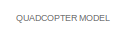
[diagram: root canvas - part 1/4, top center region]
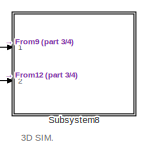
[diagram: root canvas - part 2/4, top right region]
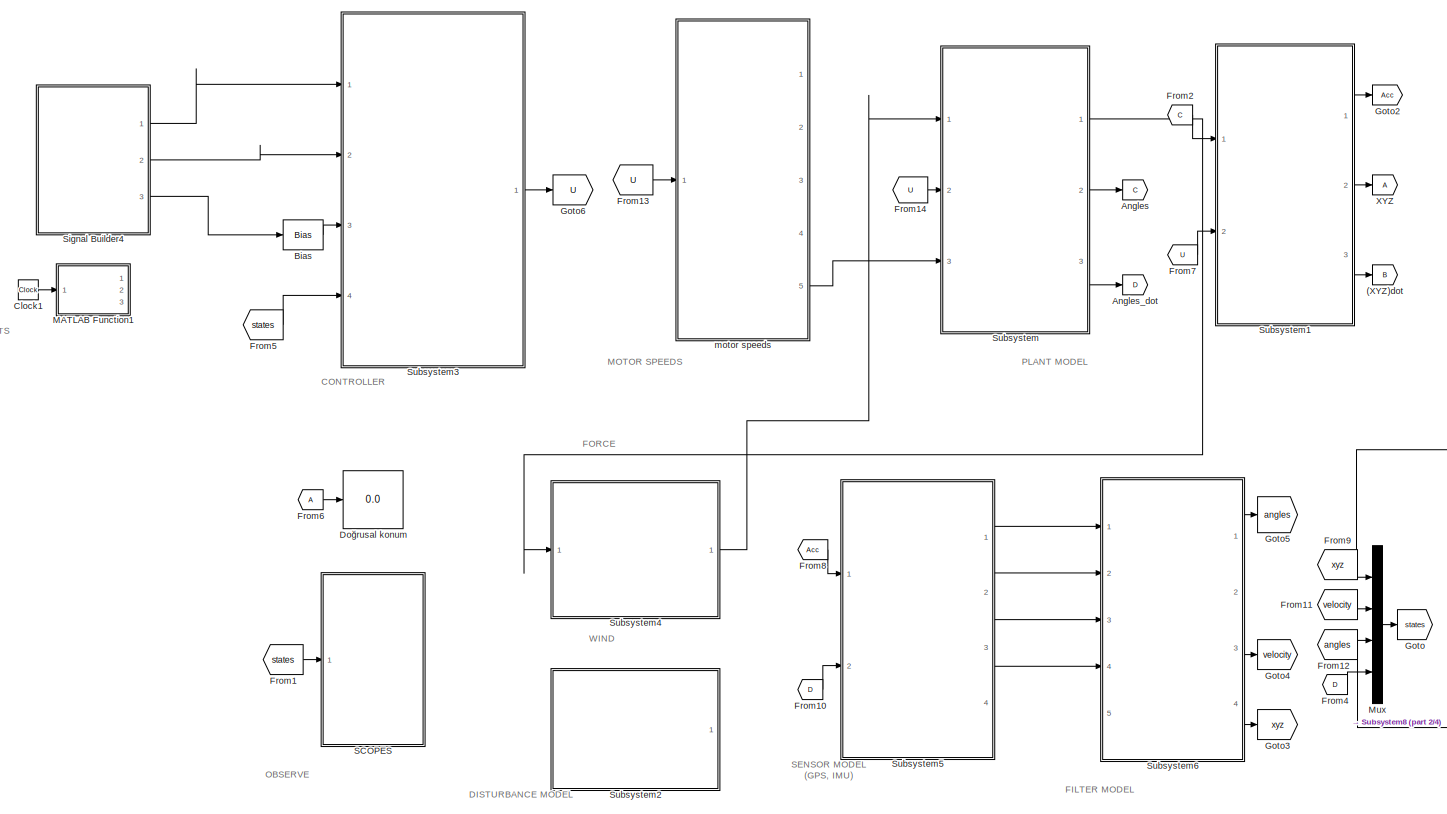
[diagram: root canvas - part 3/4, most of the canvas]
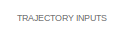
[diagram: root canvas - part 4/4, middle left region]
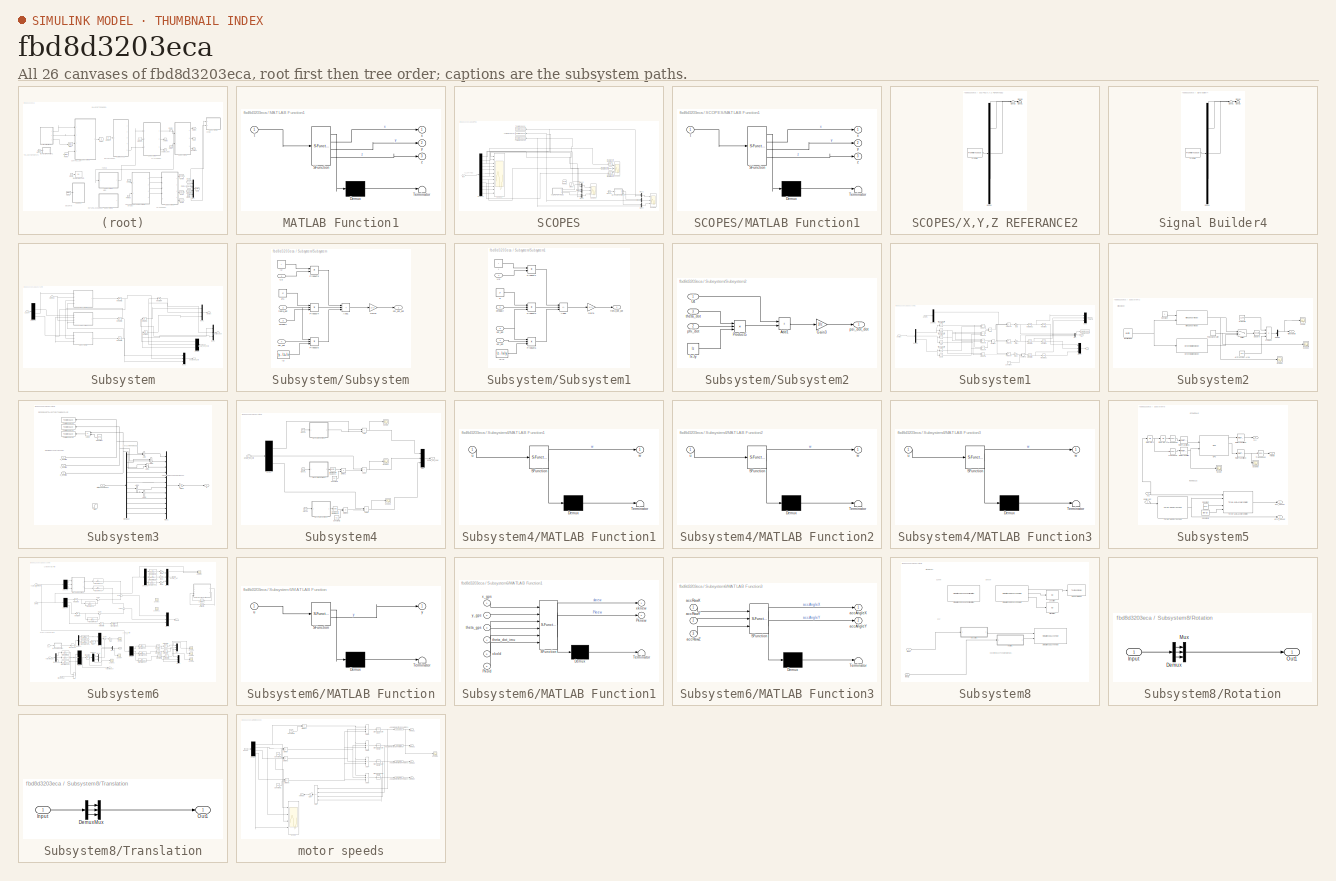
[diagram: thumbnail index - all 26 canvases of the model, root first then tree order]
MODEL slx_fbd8d3203eca
KIND model
CONFIG AbsTol = auto
CONFIG EnableMultiTasking = off
CONFIG FixedStep = 10e-3
CONFIG MaxStep = auto
CONFIG MinStep = auto
CONFIG RelTol = 1e-3
CONFIG SampleTimeConstraint = Unconstrained
CONFIG SolverName = VariableStepAuto
CONFIG StartTime = 0
CONFIG StopTime = 20
BLOCK [Goto] (XYZ)dot
  GotoTag = B
BLOCK [Goto] Angles
  GotoTag = C
BLOCK [Goto] Angles_dot
  GotoTag = D
BLOCK [Bias] Bias
  Bias = 1
  SaturateOnIntegerOverflow = off
BLOCK [Clock] Clock1
BLOCK [Display] Doğrusal konum
  Decimation = 1
  Ports = [1]
BLOCK [From] From1
  GotoTag = states
BLOCK [From] From10
  GotoTag = D
BLOCK [From] From11
  GotoTag = velocity
BLOCK [From] From12
  GotoTag = angles
BLOCK [From] From13
  GotoTag = U
BLOCK [From] From14
  GotoTag = U
BLOCK [From] From2
  GotoTag = C
BLOCK [From] From4
  GotoTag = D
BLOCK [From] From5
  GotoTag = states
BLOCK [From] From6
BLOCK [From] From7
  GotoTag = U
BLOCK [From] From8
  GotoTag = Acc
BLOCK [From] From9
  GotoTag = xyz
BLOCK [Goto] Goto
  GotoTag = states
BLOCK [Goto] Goto2
  GotoTag = Acc
BLOCK [Goto] Goto3
  GotoTag = xyz
BLOCK [Goto] Goto4
  GotoTag = velocity
BLOCK [Goto] Goto5
  GotoTag = angles
BLOCK [Goto] Goto6
  GotoTag = U
BLOCK [SubSystem] MATLAB Function1
  ErrorFcn = Stateflow.Translate.translate
  PermitHierarchicalResolution = ExplicitOnly
  Ports = [1, 3]
  RequestExecContextInheritance = off
  SFBlockType = MATLAB Function
  TreatAsAtomicUnit = on
BLOCK [Demux] MATLAB Function1/ Demux 
  Outputs = 1
  Ports = [1, 1]
BLOCK [S-Function] MATLAB Function1/ SFunction 
  EnableBusSupport = on
  FunctionName = sf_sfun
  PortCounts = [1 4]
  Ports = [1, 4]
  SFcnIsStateOwnerBlock = off
  SFunctionDeploymentMode = off
  Tag = Stateflow S-Function 8
BLOCK [Terminator] MATLAB Function1/ Terminator 
BLOCK [Inport] MATLAB Function1/t
BLOCK [Outport] MATLAB Function1/x
BLOCK [Outport] MATLAB Function1/y
  Port = 2
BLOCK [Outport] MATLAB Function1/z
  Port = 3
BLOCK [Mux] Mux
  DisplayOption = bar
  Ports = [4, 1]
BLOCK [SubSystem] SCOPES
  Ports = [1]
  RequestExecContextInheritance = off
BLOCK [Clock] SCOPES/Clock1
BLOCK [Demux] SCOPES/Demux3
  Outputs = 12
  Ports = [1, 12]
BLOCK [Inport] SCOPES/In1
BLOCK [SubSystem] SCOPES/MATLAB Function1
  ErrorFcn = Stateflow.Translate.translate
  PermitHierarchicalResolution = ExplicitOnly
  Ports = [1, 3]
  RequestExecContextInheritance = off
  SFBlockType = MATLAB Function
  TreatAsAtomicUnit = on
BLOCK [Demux] SCOPES/MATLAB Function1/ Demux 
  Outputs = 1
  Ports = [1, 1]
BLOCK [S-Function] SCOPES/MATLAB Function1/ SFunction 
  EnableBusSupport = on
  FunctionName = sf_sfun
  PortCounts = [1 4]
  Ports = [1, 4]
  SFcnIsStateOwnerBlock = off
  SFunctionDeploymentMode = off
  Tag = Stateflow S-Function 3
BLOCK [Terminator] SCOPES/MATLAB Function1/ Terminator 
BLOCK [Inport] SCOPES/MATLAB Function1/t
BLOCK [Outport] SCOPES/MATLAB Function1/x
BLOCK [Outport] SCOPES/MATLAB Function1/y
  Port = 2
BLOCK [Outport] SCOPES/MATLAB Function1/z
  Port = 3
BLOCK [Mux] SCOPES/Mux1
  DisplayOption = bar
  Inputs = 2
  Ports = [2, 1]
BLOCK [Mux] SCOPES/Mux2
  DisplayOption = bar
  Inputs = 2
  Ports = [2, 1]
BLOCK [Mux] SCOPES/Mux3
  DisplayOption = bar
  Inputs = 2
  Ports = [2, 1]
BLOCK [Mux] SCOPES/Mux4
  DisplayOption = bar
  Inputs = 2
  Ports = [2, 1]
BLOCK [Mux] SCOPES/Mux7
  DisplayOption = bar
  Inputs = 2
  Ports = [2, 1]
BLOCK [Mux] SCOPES/Mux8
  DisplayOption = bar
  Inputs = 2
  Ports = [2, 1]
BLOCK [Reference] SCOPES/Radians to Degrees1  REF=simulink_extras/Transformations/Radians
to Degrees
  Ports = [1, 1]
  SourceBlock = simulink_extras/Transformations/Radians\nto Degrees
  SourceProductBaseCode = SL
  SourceType = RadiansToDegrees
BLOCK [Reference] SCOPES/Radians to Degrees2  REF=simulink_extras/Transformations/Radians
to Degrees
  Ports = [1, 1]
  SourceBlock = simulink_extras/Transformations/Radians\nto Degrees
  SourceProductBaseCode = SL
  SourceType = RadiansToDegrees
BLOCK [Reference] SCOPES/Radians to Degrees3  REF=simulink_extras/Transformations/Radians
to Degrees
  Ports = [1, 1]
  SourceBlock = simulink_extras/Transformations/Radians\nto Degrees
  SourceProductBaseCode = SL
  SourceType = RadiansToDegrees
BLOCK [Reference] SCOPES/Ramp1  REF=simulink/Sources/Ramp
  Ports = [0, 1]
  SourceBlock = simulink/Sources/Ramp
  SourceProductBaseCode = SL
  SourceType = Ramp
BLOCK [Scope] SCOPES/Scope1
  Floating = off
  NumInputPorts = 3
  Ports = [3]
  ScopeSpecificationString = Simulink.scopes.TimeScopeBlockCfg('CurrentConfiguration', extmgr.ConfigurationSet(extmgr.Configuration('Core','General UI',true,'FigureColor',[1 1 1]),extmgr.Configuration('Core','Source UI',true),extmgr.Configuration('Sources','WiredSimulink',true,'DataLoggingVariableName','ScopeData2'),extmgr.Configuration('Visuals','Time Domain',true,'SerializedDisplays',{struct('MinYLimReal','-0.1402','MaxYLim...<+3589ch>
BLOCK [Scope] SCOPES/Scope2
  Floating = off
  NumInputPorts = 12
  Ports = [12]
  ScopeSpecificationString = Simulink.scopes.TimeScopeBlockCfg('CurrentConfiguration', extmgr.ConfigurationSet(extmgr.Configuration('Core','General UI',true),extmgr.Configuration('Core','Source UI',true),extmgr.Configuration('Sources','WiredSimulink',true,'DataLoggingVariableName','ScopeData1'),extmgr.Configuration('Visuals','Time Domain',true,'SerializedDisplays',{struct('MinYLimReal','-0.13438','MaxYLimReal','1.20943','YLab...<+10398ch>
BLOCK [Scope] SCOPES/Scope3
  Floating = off
  NumInputPorts = 3
  Ports = [3]
  ScopeSpecificationString = Simulink.scopes.TimeScopeBlockCfg('CurrentConfiguration', extmgr.ConfigurationSet(extmgr.Configuration('Core','General UI',true,'FigureColor',[1 1 1]),extmgr.Configuration('Core','Source UI',true),extmgr.Configuration('Sources','WiredSimulink',true,'DataLoggingVariableName','ScopeData1'),extmgr.Configuration('Visuals','Time Domain',true,'SerializedDisplays',{struct('MinYLimReal','-68.17096','MaxYL...<+3508ch>
BLOCK [Scope] SCOPES/Scope5
  Floating = off
  NumInputPorts = 3
  Ports = [3]
  ScopeSpecificationString = Simulink.scopes.TimeScopeBlockCfg('CurrentConfiguration', extmgr.ConfigurationSet(extmgr.Configuration('Core','General UI',true,'FigureColor',[1 1 1]),extmgr.Configuration('Core','Source UI',true),extmgr.Configuration('Sources','WiredSimulink',true,'DataLoggingVariableName','ScopeData2'),extmgr.Configuration('Visuals','Time Domain',true,'SerializedDisplays',{struct('MinYLimReal','-2.5','MaxYLimRea...<+3581ch>
BLOCK [Step] SCOPES/Step1
  SampleTime = 0
BLOCK [ToWorkspace] SCOPES/To Workspace
  FixptAsFi = on
  MaxDataPoints = inf
  Ports = [1]
  SampleTime = -1
  VariableName = X
BLOCK [ToWorkspace] SCOPES/To Workspace1
  FixptAsFi = on
  MaxDataPoints = inf
  Ports = [1]
  SampleTime = -1
  VariableName = Y
BLOCK [ToWorkspace] SCOPES/To Workspace2
  FixptAsFi = on
  MaxDataPoints = inf
  Ports = [1]
  SampleTime = -1
  VariableName = Z
BLOCK [SubSystem] SCOPES/X,Y,Z REFERANCE2
  ClipboardFcn = sigbuilder_block('clipboard');
  CloseFcn = sigbuilder_block('close');
  ContinueFcn = sigbuilder_block('continue');
  CopyFcn = sigbuilder_block('copy');
  DeleteFcn = sigbuilder_block('delete');
  LoadFcn = sigbuilder_block('load');
  MaskHideContents = on
  ModelCloseFcn = sigbuilder_block('modelClose');
  NameChangeFcn = sigbuilder_block('namechange');
  OpenFcn = sigbuilder_block('open',[392.25 186 550.5 399.75 ]);
  PauseFcn = sigbuilder_block('pause');
  Ports = [0, 3]
  PreSaveFcn = sigbuilder_block('preSave');
  RequestExecContextInheritance = off
  StartFcn = sigbuilder_block('start');
  StopFcn = sigbuilder_block('stop');
  Tag = STV Subsys
BLOCK [Demux] SCOPES/X,Y,Z REFERANCE2/Demux
  DisplayOption = none
  Outputs = 3
  Ports = [1, 3]
  Tag = STV Demux
BLOCK [FromWorkspace] SCOPES/X,Y,Z REFERANCE2/FromWs
  Tag = STV FromWs
  VariableName = tuvar
BLOCK [Outport] SCOPES/X,Y,Z REFERANCE2/Signal 1
  Port = 2
  Tag = STV Outport
BLOCK [Outport] SCOPES/X,Y,Z REFERANCE2/Signal 2
  Tag = STV Outport
BLOCK [Outport] SCOPES/X,Y,Z REFERANCE2/Signal 3
  Port = 3
  Tag = STV Outport
BLOCK [SubSystem] Signal Builder4
  ClipboardFcn = sigbuilder_block('clipboard');
  CloseFcn = sigbuilder_block('close');
  ContinueFcn = sigbuilder_block('continue');
  CopyFcn = sigbuilder_block('copy');
  DeleteFcn = sigbuilder_block('delete');
  LoadFcn = sigbuilder_block('load');
  MaskHideContents = on
  ModelCloseFcn = sigbuilder_block('modelClose');
  NameChangeFcn = sigbuilder_block('namechange');
  OpenFcn = sigbuilder_block('open',[437.6 199.2 550.4 400 ]);
  PauseFcn = sigbuilder_block('pause');
  Ports = [0, 3]
  PreSaveFcn = sigbuilder_block('preSave');
  RequestExecContextInheritance = off
  StartFcn = sigbuilder_block('start');
  StopFcn = sigbuilder_block('stop');
  Tag = STV Subsys
BLOCK [Demux] Signal Builder4/Demux
  DisplayOption = none
  Outputs = 3
  Ports = [1, 3]
  Tag = STV Demux
BLOCK [FromWorkspace] Signal Builder4/FromWs
  Tag = STV FromWs
  VariableName = tuvar
BLOCK [Outport] Signal Builder4/Signal 1
  Tag = STV Outport
BLOCK [Outport] Signal Builder4/Signal 2
  Port = 2
  Tag = STV Outport
BLOCK [Outport] Signal Builder4/Signal 3
  Port = 3
  Tag = STV Outport
BLOCK [SubSystem] Subsystem
  Ports = [3, 3]
  RequestExecContextInheritance = off
BLOCK [Demux] Subsystem/Demux
  Outputs = 3
  Ports = [1, 3]
BLOCK [Demux] Subsystem/Demux1
  Ports = [1, 4]
BLOCK [Integrator] Subsystem/Integrator1
  Ports = [1, 1]
  WrapState = on
BLOCK [Integrator] Subsystem/Integrator2
  Ports = [1, 1]
BLOCK [Integrator] Subsystem/Integrator3
  Ports = [1, 1]
BLOCK [Integrator] Subsystem/Integrator4
  Ports = [1, 1]
  WrapState = on
BLOCK [Integrator] Subsystem/Integrator5
  Ports = [1, 1]
BLOCK [Integrator] Subsystem/Integrator6
  Ports = [1, 1]
  WrapState = on
BLOCK [Mux] Subsystem/Mux1
  DisplayOption = bar
  Inputs = 3
  Ports = [3, 1]
BLOCK [Mux] Subsystem/Mux2
  DisplayOption = bar
  Inputs = 3
  Ports = [3, 1]
BLOCK [Mux] Subsystem/Mux3
  DisplayOption = bar
  Inputs = 3
  Ports = [3, 1]
BLOCK [SubSystem] Subsystem/Subsystem
  Ports = [4, 1]
  RequestExecContextInheritance = off
BLOCK [Sum] Subsystem/Subsystem/Add1
  IconShape = rectangular
  Inputs = +++
  Ports = [3, 1]
BLOCK [Gain] Subsystem/Subsystem/Gain3
  Gain = 1/Ix
BLOCK [Constant] Subsystem/Subsystem/Jr1
  Value = Jr
BLOCK [Product] Subsystem/Subsystem/Product3
  Ports = [2, 1]
BLOCK [Product] Subsystem/Subsystem/Product4
  Inputs = 3
  Ports = [3, 1]
BLOCK [Product] Subsystem/Subsystem/Product5
  Inputs = 3
  Ports = [3, 1]
BLOCK [Inport] Subsystem/Subsystem/U2
BLOCK [Constant] Subsystem/Subsystem/l2
  Value = l
BLOCK [Constant] Subsystem/Subsystem/l3
  Value = Iy - Iz+Ix
BLOCK [Inport] Subsystem/Subsystem/omega-r
  Port = 3
BLOCK [Outport] Subsystem/Subsystem/phi_dot_dot
BLOCK [Inport] Subsystem/Subsystem/psi_dot
  Port = 4
BLOCK [Inport] Subsystem/Subsystem/theta_dot
  Port = 2
BLOCK [SubSystem] Subsystem/Subsystem1
  Ports = [4, 1]
  RequestExecContextInheritance = off
BLOCK [Sum] Subsystem/Subsystem1/Add2
  IconShape = rectangular
  Inputs = +-+
  Ports = [3, 1]
BLOCK [Gain] Subsystem/Subsystem1/Gain1
  Gain = 1/Iy
BLOCK [Constant] Subsystem/Subsystem1/Iz-Ix
  Value = Iz - Ix-Iy
BLOCK [Constant] Subsystem/Subsystem1/Jr
  Value = Jr
BLOCK [Product] Subsystem/Subsystem1/Product1
  Ports = [2, 1]
BLOCK [Product] Subsystem/Subsystem1/Product2
  Inputs = 3
  Ports = [3, 1]
BLOCK [Product] Subsystem/Subsystem1/Product6
  Inputs = 3
  Ports = [3, 1]
BLOCK [Inport] Subsystem/Subsystem1/U3
BLOCK [Constant] Subsystem/Subsystem1/l
  Value = l
BLOCK [Inport] Subsystem/Subsystem1/omega-r
  Port = 2
BLOCK [Inport] Subsystem/Subsystem1/phi_dot
  Port = 3
BLOCK [Inport] Subsystem/Subsystem1/psi_dot
  Port = 4
BLOCK [Outport] Subsystem/Subsystem1/theta_dot_dot
BLOCK [SubSystem] Subsystem/Subsystem2
  Ports = [3, 1]
  RequestExecContextInheritance = off
BLOCK [Sum] Subsystem/Subsystem2/Add1
  IconShape = rectangular
  Ports = [2, 1]
BLOCK [Gain] Subsystem/Subsystem2/Gain3
  Gain = 1/Iz
BLOCK [Product] Subsystem/Subsystem2/Product5
  Inputs = 3
  Ports = [3, 1]
BLOCK [Inport] Subsystem/Subsystem2/U4
BLOCK [Constant] Subsystem/Subsystem2/lx-Iy
  Value = Iz
BLOCK [Inport] Subsystem/Subsystem2/phi_dot
  Port = 2
BLOCK [Outport] Subsystem/Subsystem2/psi_dot_dot
BLOCK [Inport] Subsystem/Subsystem2/theta_dot
  Port = 3
BLOCK [Inport] Subsystem/U1234
  Port = 2
BLOCK [Inport] Subsystem/angle_dot_new
BLOCK [Outport] Subsystem/angle_dot_old
BLOCK [Outport] Subsystem/angles
  Port = 2
BLOCK [Outport] Subsystem/angles_dot
  Port = 3
BLOCK [Inport] Subsystem/omega-r
  Port = 3
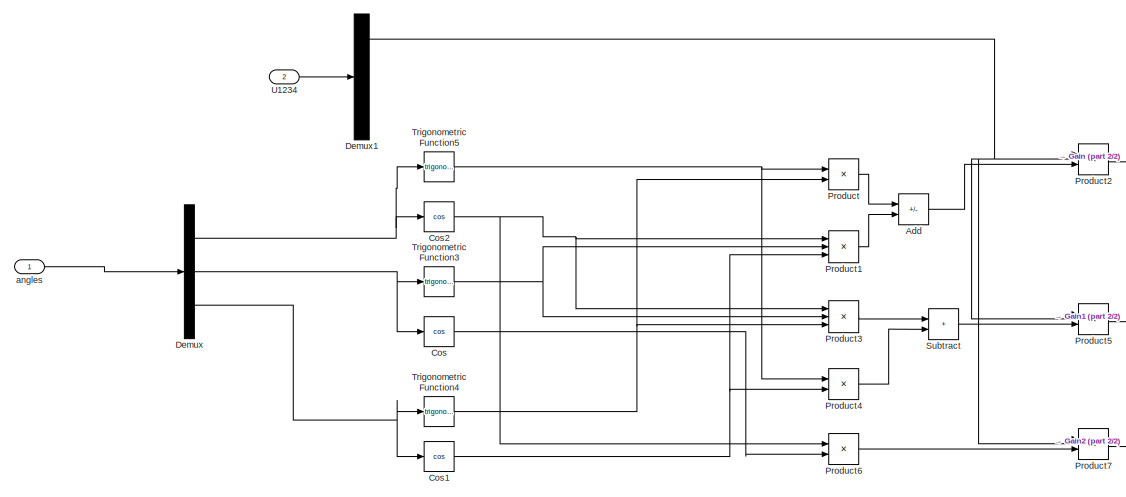
[diagram: Subsystem1 - part 1/2, left side, full height]
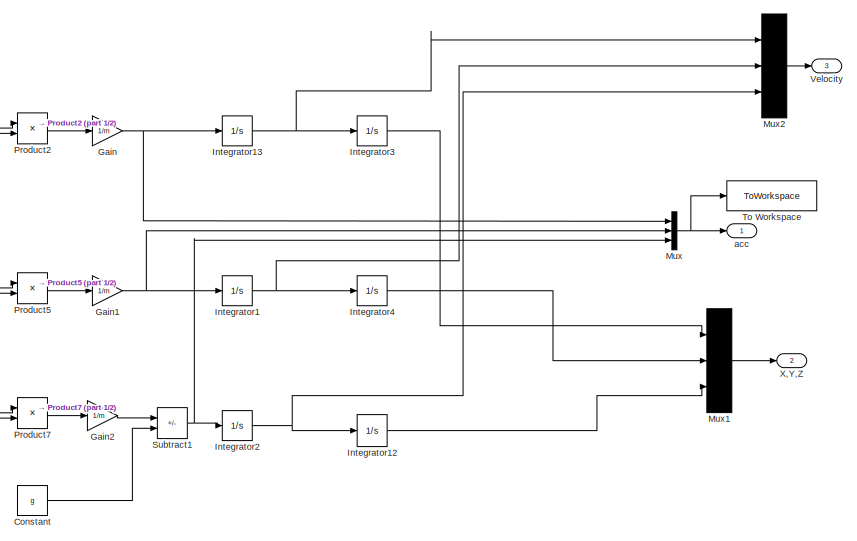
[diagram: Subsystem1 - part 2/2, right side, full height]
BLOCK [SubSystem] Subsystem1
  Ports = [2, 3]
  RequestExecContextInheritance = off
BLOCK [Sum] Subsystem1/Add
  IconShape = rectangular
  Inputs = +-
  Ports = [2, 1]
BLOCK [Constant] Subsystem1/Constant
  Value = g
BLOCK [Trigonometry] Subsystem1/Cos
  Operator = cos
  Ports = [1, 1]
BLOCK [Trigonometry] Subsystem1/Cos1
  Operator = cos
  Ports = [1, 1]
BLOCK [Trigonometry] Subsystem1/Cos2
  Operator = cos
  Ports = [1, 1]
BLOCK [Demux] Subsystem1/Demux
  Outputs = 3
  Ports = [1, 3]
BLOCK [Demux] Subsystem1/Demux1
  Ports = [1, 4]
BLOCK [Gain] Subsystem1/Gain
  Gain = 1/m
BLOCK [Gain] Subsystem1/Gain1
  Gain = 1/m
BLOCK [Gain] Subsystem1/Gain2
  Gain = 1/m
BLOCK [Integrator] Subsystem1/Integrator1
  Ports = [1, 1]
BLOCK [Integrator] Subsystem1/Integrator12
  LimitOutput = on
  LowerSaturationLimit = 0
  Ports = [1, 1]
  WrappedStateLowerValue = 0
  WrappedStateUpperValue = 100
BLOCK [Integrator] Subsystem1/Integrator13
  Ports = [1, 1]
BLOCK [Integrator] Subsystem1/Integrator2
  Ports = [1, 1]
BLOCK [Integrator] Subsystem1/Integrator3
  Ports = [1, 1]
BLOCK [Integrator] Subsystem1/Integrator4
  Ports = [1, 1]
BLOCK [Mux] Subsystem1/Mux
  DisplayOption = bar
  Inputs = 3
  Ports = [3, 1]
BLOCK [Mux] Subsystem1/Mux1
  DisplayOption = bar
  Inputs = 3
  Ports = [3, 1]
BLOCK [Mux] Subsystem1/Mux2
  DisplayOption = bar
  Inputs = 3
  Ports = [3, 1]
BLOCK [Product] Subsystem1/Product
  Ports = [2, 1]
BLOCK [Product] Subsystem1/Product1
  Inputs = 3
  Ports = [3, 1]
BLOCK [Product] Subsystem1/Product2
  Ports = [2, 1]
BLOCK [Product] Subsystem1/Product3
  Inputs = 3
  Ports = [3, 1]
BLOCK [Product] Subsystem1/Product4
  Ports = [2, 1]
BLOCK [Product] Subsystem1/Product5
  Ports = [2, 1]
BLOCK [Product] Subsystem1/Product6
  Ports = [2, 1]
BLOCK [Product] Subsystem1/Product7
  Ports = [2, 1]
BLOCK [Sum] Subsystem1/Subtract
  IconShape = rectangular
  Ports = [2, 1]
BLOCK [Sum] Subsystem1/Subtract1
  IconShape = rectangular
  Inputs = +-
  Ports = [2, 1]
BLOCK [ToWorkspace] Subsystem1/To Workspace
  FixptAsFi = on
  MaxDataPoints = inf
  Ports = [1]
  SampleTime = -1
  VariableName = TYU
BLOCK [Trigonometry] Subsystem1/Trigonometric Function3
  Ports = [1, 1]
BLOCK [Trigonometry] Subsystem1/Trigonometric Function4
  Ports = [1, 1]
BLOCK [Trigonometry] Subsystem1/Trigonometric Function5
  Ports = [1, 1]
BLOCK [Inport] Subsystem1/U1234
  Port = 2
BLOCK [Outport] Subsystem1/Velocity
  Port = 3
BLOCK [Outport] Subsystem1/X,Y,Z
  Port = 2
BLOCK [Outport] Subsystem1/acc
BLOCK [Inport] Subsystem1/angles
BLOCK [SubSystem] Subsystem2
  Ports = [0, 1]
  RequestExecContextInheritance = off
BLOCK [Constant] Subsystem2/Air Cross Sec-Area
  NameLocation = top
  Value = 0.01
BLOCK [Constant] Subsystem2/Air Density
  NameLocation = top
  Value = 1.299
BLOCK [Constant] Subsystem2/Constant
BLOCK [Demux] Subsystem2/Demux
  Outputs = 3
  Ports = [1, 3]
BLOCK [Reference] Subsystem2/Horizontal Wind Model  REF=aerolibwind2/Horizontal Wind Model
  Ports = [1, 1]
  SourceBlock = aerolibwind2/Horizontal Wind Model
  SourceProductBaseCode = AE
  SourceType = Horizontal Wind Model
BLOCK [IdentityMatrix] Subsystem2/IdentityMatrix
  NameLocation = top
  OutputDimensions = 3
  Ports = [0, 1]
BLOCK [Product] Subsystem2/Product
  Inputs = 3
  NameLocation = top
  Ports = [3, 1]
BLOCK [DiscretePulseGenerator] Subsystem2/Pulse Generator
  NameLocation = top
  Period = 20
  Ports = [0, 1]
  PulseType = Time based
  PulseWidth = 50
BLOCK [Scope] Subsystem2/Scope
  Floating = off
  NumInputPorts = 1
  Ports = [1]
  ScopeSpecificationString = Simulink.scopes.TimeScopeBlockCfg('CurrentConfiguration', extmgr.ConfigurationSet(extmgr.Configuration('Core','General UI',true),extmgr.Configuration('Core','Source UI',true),extmgr.Configuration('Sources','WiredSimulink',true,'DataLoggingVariableName','ScopeData1'),extmgr.Configuration('Visuals','Time Domain',true,'SerializedDisplays',{struct('MinYLimReal','0.41867','MaxYLimReal','1.39681','YLabe...<+1484ch>
BLOCK [Scope] Subsystem2/Scope1
  Floating = off
  NumInputPorts = 1
  Ports = [1]
  ScopeSpecificationString = Simulink.scopes.TimeScopeBlockCfg('CurrentConfiguration', extmgr.ConfigurationSet(extmgr.Configuration('Core','General UI',true),extmgr.Configuration('Core','Source UI',true),extmgr.Configuration('Sources','WiredSimulink',true,'DataLoggingVariableName','ScopeData2'),extmgr.Configuration('Visuals','Time Domain',true,'SerializedDisplays',{struct('MinYLimReal','-7.09376','MaxYLimReal','0.7882','YLabe...<+1417ch>
BLOCK [Scope] Subsystem2/Scope2
  Floating = off
  NumInputPorts = 1
  Ports = [1]
  ScopeSpecificationString = Simulink.scopes.TimeScopeBlockCfg('CurrentConfiguration', extmgr.ConfigurationSet(extmgr.Configuration('Core','General UI',true),extmgr.Configuration('Core','Source UI',true),extmgr.Configuration('Sources','WiredSimulink',true,'DataLoggingVariableName','ScopeData3'),extmgr.Configuration('Visuals','Time Domain',true,'SerializedDisplays',{struct('MinYLimReal','-0.125','MaxYLimReal','1.125','YLabelRe...<+1416ch>
BLOCK [Math] Subsystem2/Square
  Operator = square
  Ports = [1, 1]
BLOCK [Switch] Subsystem2/Switch
  Criteria = u2 > Threshold
  InputSameDT = off
  NameLocation = top
  SaturateOnIntegerOverflow = off
BLOCK [Reference] Subsystem2/Wind Shear Model  REF=aerolibwind2/Wind Shear Model
  Ports = [2, 1]
  SourceBlock = aerolibwind2/Wind Shear Model
  SourceProductBaseCode = AE
  SourceType = Wind Shear Model
BLOCK [Outport] Subsystem2/WindVelocity
BLOCK [SubSystem] Subsystem3
  Ports = [4, 1]
  RequestExecContextInheritance = off
BLOCK [Sum] Subsystem3/Add
  IconShape = rectangular
  Inputs = -+
  Ports = [2, 1]
BLOCK [Sum] Subsystem3/Add1
  IconShape = rectangular
  Inputs = +-
  Ports = [2, 1]
BLOCK [Sum] Subsystem3/Add2
  IconShape = rectangular
  Inputs = +-
  Ports = [2, 1]
BLOCK [Sum] Subsystem3/Add3
  IconShape = rectangular
  Inputs = +-
  Ports = [2, 1]
BLOCK [Sum] Subsystem3/Add4
  IconShape = rectangular
  Inputs = +-
  Ports = [2, 1]
BLOCK [Sum] Subsystem3/Add5
  IconShape = rectangular
  Inputs = +-
  Ports = [2, 1]
BLOCK [Constant] Subsystem3/Constant
  Value = 0.975
BLOCK [Demux] Subsystem3/Demux2
  Outputs = 12
  Ports = [1, 12]
BLOCK [Gain] Subsystem3/Gain3
  Gain = -K
  Multiplication = Matrix(K*u)
  NameLocation = top
BLOCK [Outport] Subsystem3/K
BLOCK [Mux] Subsystem3/Mux1
  DisplayOption = bar
  Inputs = 12
  Ports = [12, 1]
BLOCK [Inport] Subsystem3/StatesFeedback
  Port = 4
BLOCK [Step] Subsystem3/Step
  SampleTime = 0
  Time = 0
BLOCK [ToWorkspace] Subsystem3/To Workspace3
  FixptAsFi = on
  MaxDataPoints = inf
  Ports = [1]
  SampleTime = -1
  VariableName = X1
BLOCK [ToWorkspace] Subsystem3/To Workspace4
  FixptAsFi = on
  MaxDataPoints = inf
  Ports = [1]
  SampleTime = -1
  VariableName = Y1
BLOCK [ToWorkspace] Subsystem3/To Workspace5
  FixptAsFi = on
  MaxDataPoints = inf
  Ports = [1]
  SampleTime = -1
  VariableName = Z1
BLOCK [Inport] Subsystem3/X_desired
BLOCK [Inport] Subsystem3/Y_desired
  Port = 2
BLOCK [Inport] Subsystem3/Z_desired
  Port = 3
BLOCK [SubSystem] Subsystem4
  Ports = [1, 1]
  RequestExecContextInheritance = off
BLOCK [Sum] Subsystem4/Add
  IconShape = rectangular
  Ports = [2, 1]
BLOCK [Sum] Subsystem4/Add1
  IconShape = rectangular
  Ports = [2, 1]
BLOCK [Sum] Subsystem4/Add2
  IconShape = rectangular
  Ports = [2, 1]
BLOCK [Clock] Subsystem4/Clock1
BLOCK [Clock] Subsystem4/Clock2
BLOCK [Clock] Subsystem4/Clock3
BLOCK [Constant] Subsystem4/Constant1
  Value = 0.1
BLOCK [Constant] Subsystem4/Constant2
  Value = 0.1
BLOCK [Reference] Subsystem4/Degrees to Radians1  REF=simulink_extras/Transformations/Degrees to
Radians
  Ports = [1, 1]
  SourceBlock = simulink_extras/Transformations/Degrees to\nRadians
  SourceProductBaseCode = SL
  SourceType = DegreesToRadians
BLOCK [Reference] Subsystem4/Degrees to Radians2  REF=simulink_extras/Transformations/Degrees to
Radians
  Ports = [1, 1]
  SourceBlock = simulink_extras/Transformations/Degrees to\nRadians
  SourceProductBaseCode = SL
  SourceType = DegreesToRadians
BLOCK [Demux] Subsystem4/Demux
  Outputs = 3
  Ports = [1, 3]
BLOCK [Product] Subsystem4/Divide1
  Inputs = */
  Ports = [2, 1]
BLOCK [Product] Subsystem4/Divide2
  Inputs = */
  Ports = [2, 1]
BLOCK [SubSystem] Subsystem4/MATLAB Function1
  ErrorFcn = Stateflow.Translate.translate
  PermitHierarchicalResolution = ExplicitOnly
  Ports = [1, 1]
  RequestExecContextInheritance = off
  SFBlockType = MATLAB Function
  TreatAsAtomicUnit = on
BLOCK [Demux] Subsystem4/MATLAB Function1/ Demux 
  Outputs = 1
  Ports = [1, 1]
BLOCK [S-Function] Subsystem4/MATLAB Function1/ SFunction 
  EnableBusSupport = on
  FunctionName = sf_sfun
  PortCounts = [1 2]
  Ports = [1, 2]
  SFcnIsStateOwnerBlock = off
  SFunctionDeploymentMode = off
  Tag = Stateflow S-Function 4
BLOCK [Terminator] Subsystem4/MATLAB Function1/ Terminator 
BLOCK [Inport] Subsystem4/MATLAB Function1/u
BLOCK [Outport] Subsystem4/MATLAB Function1/w
BLOCK [SubSystem] Subsystem4/MATLAB Function2
  ErrorFcn = Stateflow.Translate.translate
  PermitHierarchicalResolution = ExplicitOnly
  Ports = [1, 1]
  RequestExecContextInheritance = off
  SFBlockType = MATLAB Function
  TreatAsAtomicUnit = on
BLOCK [Demux] Subsystem4/MATLAB Function2/ Demux 
  Outputs = 1
  Ports = [1, 1]
BLOCK [S-Function] Subsystem4/MATLAB Function2/ SFunction 
  EnableBusSupport = on
  FunctionName = sf_sfun
  PortCounts = [1 2]
  Ports = [1, 2]
  SFcnIsStateOwnerBlock = off
  SFunctionDeploymentMode = off
  Tag = Stateflow S-Function 7
BLOCK [Terminator] Subsystem4/MATLAB Function2/ Terminator 
BLOCK [Inport] Subsystem4/MATLAB Function2/u
BLOCK [Outport] Subsystem4/MATLAB Function2/w
BLOCK [SubSystem] Subsystem4/MATLAB Function3
  ErrorFcn = Stateflow.Translate.translate
  PermitHierarchicalResolution = ExplicitOnly
  Ports = [1, 1]
  RequestExecContextInheritance = off
  SFBlockType = MATLAB Function
  TreatAsAtomicUnit = on
BLOCK [Demux] Subsystem4/MATLAB Function3/ Demux 
  Outputs = 1
  Ports = [1, 1]
BLOCK [S-Function] Subsystem4/MATLAB Function3/ SFunction 
  EnableBusSupport = on
  FunctionName = sf_sfun
  PortCounts = [1 2]
  Ports = [1, 2]
  SFcnIsStateOwnerBlock = off
  SFunctionDeploymentMode = off
  Tag = Stateflow S-Function 10
BLOCK [Terminator] Subsystem4/MATLAB Function3/ Terminator 
BLOCK [Inport] Subsystem4/MATLAB Function3/u
BLOCK [Outport] Subsystem4/MATLAB Function3/w
BLOCK [Mux] Subsystem4/Mux
  DisplayOption = bar
  Inputs = 3
  Ports = [3, 1]
BLOCK [Scope] Subsystem4/Scope
  Floating = off
  NumInputPorts = 1
  Ports = [1]
  ScopeSpecificationString = Simulink.scopes.TimeScopeBlockCfg('CurrentConfiguration', extmgr.ConfigurationSet(extmgr.Configuration('Core','General UI',true),extmgr.Configuration('Core','Source UI',true),extmgr.Configuration('Sources','WiredSimulink',true,'DataLoggingVariableName','ScopeData5'),extmgr.Configuration('Visuals','Time Domain',true,'SerializedDisplays',{struct('MinYLimReal','-9.09058','MaxYLimReal','6.88755','YLab...<+1387ch>
BLOCK [Scope] Subsystem4/Scope1
  Floating = off
  NumInputPorts = 1
  Ports = [1]
  ScopeSpecificationString = Simulink.scopes.TimeScopeBlockCfg('CurrentConfiguration', extmgr.ConfigurationSet(extmgr.Configuration('Core','General UI',true),extmgr.Configuration('Core','Source UI',true),extmgr.Configuration('Sources','WiredSimulink',true,'DataLoggingVariableName','ScopeData1'),extmgr.Configuration('Visuals','Time Domain',true,'SerializedDisplays',{struct('MinYLimReal','-9.09058','MaxYLimReal','6.88755','YLab...<+1387ch>
BLOCK [Scope] Subsystem4/Scope2
  Floating = off
  NumInputPorts = 1
  Ports = [1]
  ScopeSpecificationString = Simulink.scopes.TimeScopeBlockCfg('CurrentConfiguration', extmgr.ConfigurationSet(extmgr.Configuration('Core','General UI',true),extmgr.Configuration('Core','Source UI',true),extmgr.Configuration('Sources','WiredSimulink',true,'DataLoggingVariableName','ScopeData2'),extmgr.Configuration('Visuals','Time Domain',true,'SerializedDisplays',{struct('MinYLimReal','-9.09058','MaxYLimReal','6.88755','YLab...<+1387ch>
BLOCK [Outport] Subsystem4/angle_dot_new
BLOCK [Inport] Subsystem4/angle_dot_old
BLOCK [SubSystem] Subsystem5
  Ports = [2, 4]
  RequestExecContextInheritance = off
BLOCK [Inport] Subsystem5/Acc
BLOCK [Constant] Subsystem5/Constant
  Value = [0 0 0]
BLOCK [Constant] Subsystem5/Constant1
  Value = [0 0 -g]
BLOCK [Reference] Subsystem5/GPS  REF=sensorgpslib/GPS
  Ports = [2, 4]
  SourceBlock = sensorgpslib/GPS
  SourceProductBaseCode = TF,NV,UV
  SourceType = fusion.internal.simulink.gpsSensor
BLOCK [Integrator] Subsystem5/Integrator10
  Ports = [1, 1]
BLOCK [Integrator] Subsystem5/Integrator2
  Ports = [1, 1]
BLOCK [Outport] Subsystem5/LLA
  Port = 3
BLOCK [RateTransition] Subsystem5/Rate Transition
  OutPortSampleTime = 10e-3
BLOCK [RateTransition] Subsystem5/Rate Transition1
  OutPortSampleTime = 10e-3
BLOCK [RateTransition] Subsystem5/Rate Transition2
  OutPortSampleTime = 1/10
BLOCK [RateTransition] Subsystem5/Rate Transition3
  OutPortSampleTime = 1/10
BLOCK [Scope] Subsystem5/Scope
  Floating = off
  NumInputPorts = 1
  Ports = [1]
  ScopeSpecificationString = Simulink.scopes.TimeScopeBlockCfg('CurrentConfiguration', extmgr.ConfigurationSet(extmgr.Configuration('Core','General UI',true),extmgr.Configuration('Core','Source UI',true),extmgr.Configuration('Sources','WiredSimulink',true,'DataLoggingVariableName','ScopeData11'),extmgr.Configuration('Visuals','Time Domain',true,'SerializedDisplays',{struct('MinYLimReal','-1.30519','MaxYLimReal','6.09903','YLa...<+1472ch>
BLOCK [Scope] Subsystem5/Scope8
  Floating = off
  NumInputPorts = 1
  Ports = [1]
  ScopeSpecificationString = Simulink.scopes.TimeScopeBlockCfg('CurrentConfiguration', extmgr.ConfigurationSet(extmgr.Configuration('Core','General UI',true),extmgr.Configuration('Core','Source UI',true),extmgr.Configuration('Sources','WiredSimulink',true,'DataLoggingVariableName','ScopeData15'),extmgr.Configuration('Visuals','Time Domain',true,'SerializedDisplays',{struct('MinYLimReal','-1.53427','MaxYLimReal','6.51951','YLa...<+1527ch>
BLOCK [Reference] Subsystem5/Three-axis Accelerometer  REF=aerolibnav/Three-axis Accelerometer
  Ports = [5, 1]
  SourceBlock = aerolibnav/Three-axis Accelerometer
  SourceProductBaseCode = AE
  SourceType = Three-axis Accelerometer
BLOCK [Reference] Subsystem5/Three-axis Gyroscope  REF=aerolibnav/Three-axis Gyroscope
  Ports = [2, 1]
  SourceBlock = aerolibnav/Three-axis Gyroscope
  SourceProductBaseCode = AE
  SourceType = Three-axis Gyroscope
BLOCK [Math] Subsystem5/Transpose
  Operator = transpose
  Ports = [1, 1]
BLOCK [Math] Subsystem5/Transpose1
  Operator = transpose
  Ports = [1, 1]
BLOCK [Math] Subsystem5/Transpose2
  Operator = transpose
  Ports = [1, 1]
BLOCK [Outport] Subsystem5/acc_sensor
BLOCK [Inport] Subsystem5/angle_dot
  Port = 2
BLOCK [Outport] Subsystem5/gyro_sensor
  Port = 2
BLOCK [Outport] Subsystem5/velocity
  Port = 4
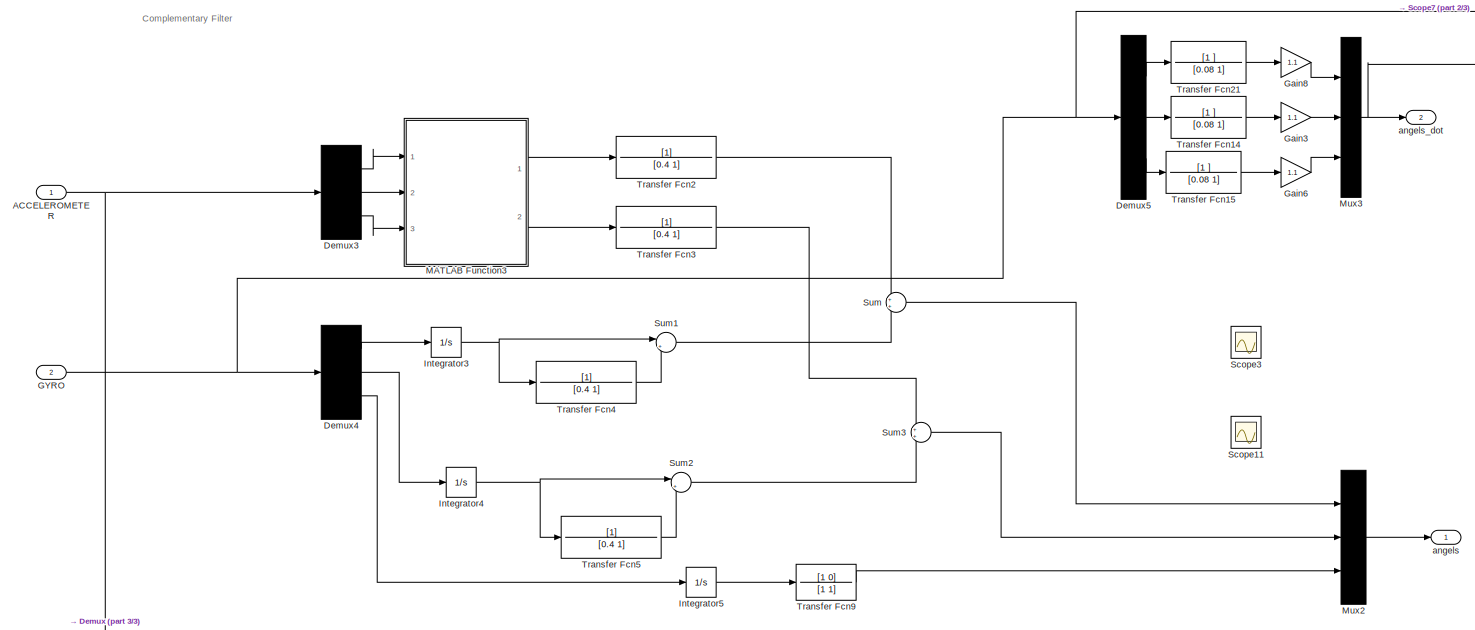
[diagram: Subsystem6 - part 1/3, full width, top band]
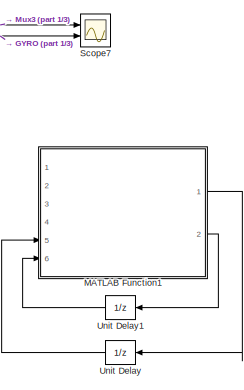
[diagram: Subsystem6 - part 2/3, top right region]
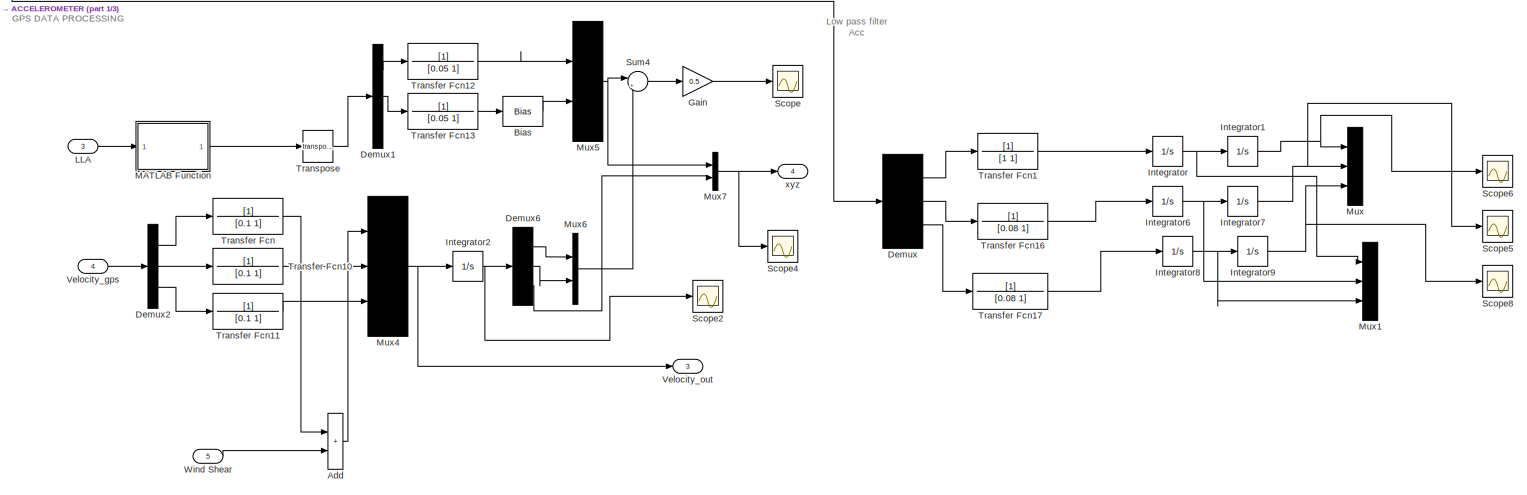
[diagram: Subsystem6 - part 3/3, full width, bottom band]
BLOCK [SubSystem] Subsystem6
  PortSchema = {"entries":[{"content":{"sides":[{"content":{"connectorIds":["In1","In2","In3","In4"]},"type":"ConnectorPlacement.EquallySpacedRectSide","uuid":"cc522a2d-3ba1-4f01-ae64-adf2ce2f9772"},{"content":{"connectorIds":["Out1","Out2","Out3","Out4"],"side":"RIGHT"},"type":"ConnectorPlacement.EquallySpacedRectSide","uuid":"95fb88f6-07dd-434c-a353-0a7a62f1e188"},{"content":{"connectorIds":[],"side":"TOP"},"t...<+428ch>
  Ports = [5, 4]
  RequestExecContextInheritance = off
BLOCK [Inport] Subsystem6/ACCELEROMETER
BLOCK [Sum] Subsystem6/Add
  IconShape = rectangular
  Ports = [2, 1]
BLOCK [Bias] Subsystem6/Bias
  SaturateOnIntegerOverflow = off
BLOCK [Demux] Subsystem6/Demux
  Outputs = 3
  Ports = [1, 3]
BLOCK [Demux] Subsystem6/Demux1
  Outputs = 3
  Ports = [1, 3]
BLOCK [Demux] Subsystem6/Demux2
  Outputs = 3
  Ports = [1, 3]
BLOCK [Demux] Subsystem6/Demux3
  Outputs = 3
  Ports = [1, 3]
BLOCK [Demux] Subsystem6/Demux4
  Outputs = 3
  Ports = [1, 3]
BLOCK [Demux] Subsystem6/Demux5
  Outputs = 3
  Ports = [1, 3]
BLOCK [Demux] Subsystem6/Demux6
  Outputs = 3
  Ports = [1, 3]
BLOCK [Inport] Subsystem6/GYRO
  Port = 2
BLOCK [Gain] Subsystem6/Gain
  Gain = 0.5
BLOCK [Gain] Subsystem6/Gain3
  Gain = 1.1
BLOCK [Gain] Subsystem6/Gain6
  Gain = 1.1
BLOCK [Gain] Subsystem6/Gain8
  Gain = 1.1
BLOCK [Integrator] Subsystem6/Integrator
  Ports = [1, 1]
BLOCK [Integrator] Subsystem6/Integrator1
  Ports = [1, 1]
BLOCK [Integrator] Subsystem6/Integrator2
  Ports = [1, 1]
BLOCK [Integrator] Subsystem6/Integrator3
  Ports = [1, 1]
BLOCK [Integrator] Subsystem6/Integrator4
  Ports = [1, 1]
BLOCK [Integrator] Subsystem6/Integrator5
  Ports = [1, 1]
BLOCK [Integrator] Subsystem6/Integrator6
  Ports = [1, 1]
BLOCK [Integrator] Subsystem6/Integrator7
  Ports = [1, 1]
BLOCK [Integrator] Subsystem6/Integrator8
  Ports = [1, 1]
BLOCK [Integrator] Subsystem6/Integrator9
  Ports = [1, 1]
BLOCK [Inport] Subsystem6/LLA
  Port = 3
BLOCK [SubSystem] Subsystem6/MATLAB Function
  ErrorFcn = Stateflow.Translate.translate
  PermitHierarchicalResolution = ExplicitOnly
  Ports = [1, 1]
  RequestExecContextInheritance = off
  SFBlockType = MATLAB Function
  TreatAsAtomicUnit = on
BLOCK [Demux] Subsystem6/MATLAB Function/ Demux 
  Outputs = 1
  Ports = [1, 1]
BLOCK [S-Function] Subsystem6/MATLAB Function/ SFunction 
  EnableBusSupport = on
  FunctionName = sf_sfun
  PortCounts = [1 2]
  Ports = [1, 2]
  SFcnIsStateOwnerBlock = off
  SFunctionDeploymentMode = off
  Tag = Stateflow S-Function 5
BLOCK [Terminator] Subsystem6/MATLAB Function/ Terminator 
BLOCK [Inport] Subsystem6/MATLAB Function/u
BLOCK [Outport] Subsystem6/MATLAB Function/y
BLOCK [SubSystem] Subsystem6/MATLAB Function1
  Commented = on
  ErrorFcn = Stateflow.Translate.translate
  PermitHierarchicalResolution = ExplicitOnly
  Ports = [6, 2]
  RequestExecContextInheritance = off
  SFBlockType = MATLAB Function
  TreatAsAtomicUnit = on
BLOCK [Demux] Subsystem6/MATLAB Function1/ Demux 
  Outputs = 1
  Ports = [1, 1]
BLOCK [S-Function] Subsystem6/MATLAB Function1/ SFunction 
  EnableBusSupport = on
  FunctionName = sf_sfun
  PortCounts = [6 3]
  Ports = [6, 3]
  SFcnIsStateOwnerBlock = off
  SFunctionDeploymentMode = off
  Tag = Stateflow S-Function 6
BLOCK [Terminator] Subsystem6/MATLAB Function1/ Terminator 
BLOCK [Outport] Subsystem6/MATLAB Function1/Pknew
  Port = 2
  VectorParamsAs1DForOutWhenUnconnected = off
BLOCK [Inport] Subsystem6/MATLAB Function1/Pkold
  Port = 6
BLOCK [Inport] Subsystem6/MATLAB Function1/theta_dot_imu
  Port = 4
BLOCK [Inport] Subsystem6/MATLAB Function1/theta_gps
  Port = 3
BLOCK [Inport] Subsystem6/MATLAB Function1/x_gps
BLOCK [Outport] Subsystem6/MATLAB Function1/xknew
  VectorParamsAs1DForOutWhenUnconnected = off
BLOCK [Inport] Subsystem6/MATLAB Function1/xkold
  Port = 5
BLOCK [Inport] Subsystem6/MATLAB Function1/y_gps
  Port = 2
BLOCK [SubSystem] Subsystem6/MATLAB Function3
  ErrorFcn = Stateflow.Translate.translate
  PermitHierarchicalResolution = ExplicitOnly
  Ports = [3, 2]
  RequestExecContextInheritance = off
  SFBlockType = MATLAB Function
  TreatAsAtomicUnit = on
BLOCK [Demux] Subsystem6/MATLAB Function3/ Demux 
  Outputs = 1
  Ports = [1, 1]
BLOCK [S-Function] Subsystem6/MATLAB Function3/ SFunction 
  EnableBusSupport = on
  FunctionName = sf_sfun
  PortCounts = [3 3]
  Ports = [3, 3]
  SFcnIsStateOwnerBlock = off
  SFunctionDeploymentMode = off
  Tag = Stateflow S-Function 1
BLOCK [Terminator] Subsystem6/MATLAB Function3/ Terminator 
BLOCK [Outport] Subsystem6/MATLAB Function3/accAngleX
BLOCK [Outport] Subsystem6/MATLAB Function3/accAngleY
  Port = 2
BLOCK [Inport] Subsystem6/MATLAB Function3/accRawX
BLOCK [Inport] Subsystem6/MATLAB Function3/accRawY
  Port = 2
BLOCK [Inport] Subsystem6/MATLAB Function3/accRawZ
  Port = 3
BLOCK [Mux] Subsystem6/Mux
  DisplayOption = bar
  Inputs = 3
  Ports = [3, 1]
BLOCK [Mux] Subsystem6/Mux1
  DisplayOption = bar
  Inputs = 3
  Ports = [3, 1]
BLOCK [Mux] Subsystem6/Mux2
  DisplayOption = bar
  Inputs = 3
  Ports = [3, 1]
BLOCK [Mux] Subsystem6/Mux3
  DisplayOption = bar
  Inputs = 3
  Ports = [3, 1]
BLOCK [Mux] Subsystem6/Mux4
  DisplayOption = bar
  Inputs = 3
  Ports = [3, 1]
BLOCK [Mux] Subsystem6/Mux5
  DisplayOption = bar
  Inputs = 2
  Ports = [2, 1]
BLOCK [Mux] Subsystem6/Mux6
  DisplayOption = bar
  Inputs = 2
  Ports = [2, 1]
BLOCK [Mux] Subsystem6/Mux7
  DisplayOption = bar
  Inputs = 2
  Ports = [2, 1]
BLOCK [Scope] Subsystem6/Scope
  Floating = off
  NumInputPorts = 1
  Ports = [1]
  ScopeSpecificationString = Simulink.scopes.TimeScopeBlockCfg('CurrentConfiguration', extmgr.ConfigurationSet(extmgr.Configuration('Core','General UI',true),extmgr.Configuration('Core','Source UI',true),extmgr.Configuration('Sources','WiredSimulink',true,'DataLoggingVariableName','ScopeData1'),extmgr.Configuration('Visuals','Time Domain',true,'SerializedDisplays',{struct('MinYLimReal','-0.15369','MaxYLimReal','1.16393','YLab...<+1426ch>
BLOCK [Scope] Subsystem6/Scope11
  Floating = off
  NumInputPorts = 1
  Ports = [1]
  ScopeSpecificationString = Simulink.scopes.TimeScopeBlockCfg('CurrentConfiguration', extmgr.ConfigurationSet(extmgr.Configuration('Core','General UI',true),extmgr.Configuration('Core','Source UI',true),extmgr.Configuration('Sources','WiredSimulink',true,'DataLoggingVariableName','ScopeData3'),extmgr.Configuration('Visuals','Time Domain',true,'SerializedDisplays',{struct('MinYLimReal','-13.56912','MaxYLimReal','10.68736','YL...<+1457ch>
BLOCK [Scope] Subsystem6/Scope2
  Floating = off
  NumInputPorts = 1
  Ports = [1]
  ScopeSpecificationString = Simulink.scopes.TimeScopeBlockCfg('CurrentConfiguration', extmgr.ConfigurationSet(extmgr.Configuration('Core','General UI',true),extmgr.Configuration('Core','Source UI',true),extmgr.Configuration('Sources','WiredSimulink',true,'DataLoggingVariableName','ScopeData2'),extmgr.Configuration('Visuals','Time Domain',true,'SerializedDisplays',{struct('MinYLimReal','-0.16825','MaxYLimReal','1.18559','YLab...<+1525ch>
BLOCK [Scope] Subsystem6/Scope3
  Floating = off
  NumInputPorts = 1
  Ports = [1]
  ScopeSpecificationString = Simulink.scopes.TimeScopeBlockCfg('CurrentConfiguration', extmgr.ConfigurationSet(extmgr.Configuration('Core','General UI',true),extmgr.Configuration('Core','Source UI',true),extmgr.Configuration('Sources','WiredSimulink',true,'DataLoggingVariableName','ScopeData4'),extmgr.Configuration('Visuals','Time Domain',true,'SerializedDisplays',{struct('MinYLimReal','-0.83696','MaxYLimReal','0.7128','YLabe...<+1448ch>
BLOCK [Scope] Subsystem6/Scope4
  Floating = off
  NumInputPorts = 1
  Ports = [1]
  ScopeSpecificationString = Simulink.scopes.TimeScopeBlockCfg('CurrentConfiguration', extmgr.ConfigurationSet(extmgr.Configuration('Core','General UI',true),extmgr.Configuration('Core','Source UI',true),extmgr.Configuration('Sources','WiredSimulink',true,'DataLoggingVariableName','ScopeData4'),extmgr.Configuration('Visuals','Time Domain',true,'SerializedDisplays',{struct('MinYLimReal','-0.17565','MaxYLimReal','1.14373','YLab...<+1587ch>
BLOCK [Scope] Subsystem6/Scope5
  Floating = off
  NumInputPorts = 1
  Ports = [1]
  ScopeSpecificationString = Simulink.scopes.TimeScopeBlockCfg('CurrentConfiguration', extmgr.ConfigurationSet(extmgr.Configuration('Core','General UI',true),extmgr.Configuration('Core','Source UI',true),extmgr.Configuration('Sources','WiredSimulink',true,'DataLoggingVariableName','ScopeData1'),extmgr.Configuration('Visuals','Time Domain',true,'SerializedDisplays',{struct('MinYLimReal','-0.31566','MaxYLimReal','2.79529','YLab...<+1443ch>
BLOCK [Scope] Subsystem6/Scope6
  Floating = off
  NumInputPorts = 1
  Ports = [1]
  ScopeSpecificationString = Simulink.scopes.TimeScopeBlockCfg('CurrentConfiguration', extmgr.ConfigurationSet(extmgr.Configuration('Core','General UI',true),extmgr.Configuration('Core','Source UI',true),extmgr.Configuration('Sources','WiredSimulink',true,'DataLoggingVariableName','ScopeData2'),extmgr.Configuration('Visuals','Time Domain',true,'SerializedDisplays',{struct('MinYLimReal','-2.03372','MaxYLimReal','0.93681','YLab...<+1424ch>
BLOCK [Scope] Subsystem6/Scope7
  Floating = off
  NumInputPorts = 2
  Ports = [2]
  ScopeSpecificationString = Simulink.scopes.TimeScopeBlockCfg('CurrentConfiguration', extmgr.ConfigurationSet(extmgr.Configuration('Core','General UI',true),extmgr.Configuration('Core','Source UI',true),extmgr.Configuration('Sources','WiredSimulink',true,'DataLoggingVariableName','ScopeData3'),extmgr.Configuration('Visuals','Time Domain',true,'SerializedDisplays',{struct('MinYLimReal','-7.55383','MaxYLimReal','7.44082','YLab...<+1617ch>
BLOCK [Scope] Subsystem6/Scope8
  Floating = off
  NumInputPorts = 1
  Ports = [1]
  ScopeSpecificationString = Simulink.scopes.TimeScopeBlockCfg('CurrentConfiguration', extmgr.ConfigurationSet(extmgr.Configuration('Core','General UI',true),extmgr.Configuration('Core','Source UI',true),extmgr.Configuration('Sources','WiredSimulink',true,'DataLoggingVariableName','ScopeData3'),extmgr.Configuration('Visuals','Time Domain',true,'SerializedDisplays',{struct('MinYLimReal','-243.20018','MaxYLimReal','2188.80162',...<+1477ch>
BLOCK [Sum] Subsystem6/Sum
  Ports = [2, 1]
BLOCK [Sum] Subsystem6/Sum1
  Inputs = |+-
  Ports = [2, 1]
BLOCK [Sum] Subsystem6/Sum2
  Inputs = |+-
  Ports = [2, 1]
BLOCK [Sum] Subsystem6/Sum3
  Ports = [2, 1]
BLOCK [Sum] Subsystem6/Sum4
  Inputs = |++
  Ports = [2, 1]
BLOCK [TransferFcn] Subsystem6/Transfer Fcn
  Denominator = [0.1 1]
BLOCK [TransferFcn] Subsystem6/Transfer Fcn1
  Denominator = [1 1]
BLOCK [TransferFcn] Subsystem6/Transfer Fcn10
  Denominator = [0.1 1]
BLOCK [TransferFcn] Subsystem6/Transfer Fcn11
  Denominator = [0.1 1]
BLOCK [TransferFcn] Subsystem6/Transfer Fcn12
  Denominator = [0.05 1]
BLOCK [TransferFcn] Subsystem6/Transfer Fcn13
  Denominator = [0.05 1]
BLOCK [TransferFcn] Subsystem6/Transfer Fcn14
  Denominator = [0.08 1]
  Numerator = [1 ]
BLOCK [TransferFcn] Subsystem6/Transfer Fcn15
  Denominator = [0.08 1]
  Numerator = [1 ]
BLOCK [TransferFcn] Subsystem6/Transfer Fcn16
  Denominator = [0.08 1]
BLOCK [TransferFcn] Subsystem6/Transfer Fcn17
  Denominator = [0.08 1]
BLOCK [TransferFcn] Subsystem6/Transfer Fcn2
  Denominator = [0.4 1]
BLOCK [TransferFcn] Subsystem6/Transfer Fcn21
  Denominator = [0.08 1]
  Numerator = [1 ]
BLOCK [TransferFcn] Subsystem6/Transfer Fcn3
  Denominator = [0.4 1]
BLOCK [TransferFcn] Subsystem6/Transfer Fcn4
  Denominator = [0.4 1]
BLOCK [TransferFcn] Subsystem6/Transfer Fcn5
  Denominator = [0.4 1]
BLOCK [TransferFcn] Subsystem6/Transfer Fcn9
  Denominator = [1 1]
  Numerator = [1 0]
BLOCK [Math] Subsystem6/Transpose
  Operator = transpose
  Ports = [1, 1]
BLOCK [UnitDelay] Subsystem6/Unit Delay
  Commented = on
  HasFrameUpgradeWarning = on
  InitialCondition = [0, 0, 0.1, 1, 0.1]'
  NameLocation = top
  SampleTime = -1
BLOCK [UnitDelay] Subsystem6/Unit Delay1
  Commented = on
  HasFrameUpgradeWarning = on
  InitialCondition = diag([1000000, 1000000, 10, 10, 10],0)
  NameLocation = top
  SampleTime = -1
BLOCK [Inport] Subsystem6/Velocity_gps
  Port = 4
BLOCK [Outport] Subsystem6/Velocity_out
  Port = 3
BLOCK [Inport] Subsystem6/Wind Shear
  Port = 5
BLOCK [Outport] Subsystem6/angels
BLOCK [Outport] Subsystem6/angels_dot
  Port = 2
BLOCK [Outport] Subsystem6/xyz
  Port = 4
BLOCK [SubSystem] Subsystem8
  Ports = [2]
  RequestExecContextInheritance = off
BLOCK [Reference] Subsystem8/Fisheye Image  REF=visionsinks/To Video Display
  Ports = [1]
  SourceBlock = visionsinks/To Video Display
  SourceProductBaseCode = VP
  SourceType = To Video Display
BLOCK [Inport] Subsystem8/Input
BLOCK [Inport] Subsystem8/Input1
  Port = 2
BLOCK [Display] Subsystem8/Location
  Decimation = 1
  Ports = [1]
BLOCK [Display] Subsystem8/Orientation
  Decimation = 1
  Ports = [1]
BLOCK [SubSystem] Subsystem8/Rotation
  Ports = [1, 1]
  RequestExecContextInheritance = off
BLOCK [Demux] Subsystem8/Rotation/Demux
  Outputs = 3
  Ports = [1, 3]
BLOCK [Inport] Subsystem8/Rotation/Input
BLOCK [Mux] Subsystem8/Rotation/Mux
  DisplayOption = bar
  Inputs = 3
  Ports = [3, 1]
BLOCK [Outport] Subsystem8/Rotation/Out1
BLOCK [Reference] Subsystem8/Simulation 3D Fisheye Camera  REF=sim3dcameralib/Simulation 3D Fisheye Camera
  Ports = [0, 3]
  Priority = 1
  SourceBlock = sim3dcameralib/Simulation 3D Fisheye Camera
  SourceProductBaseCode = AE,DR,UV,VE
  SourceType = Simulation 3D Fisheye Camera
BLOCK [Reference] Subsystem8/Simulation 3D Scene Configuration  REF=sim3dlib/Simulation 3D Scene Configuration
  Ports = []
  Priority = 0
  SourceBlock = sim3dlib/Simulation 3D Scene Configuration
  SourceProductBaseCode = AE,DR,UV,VE
  SourceType = Simulation 3D Scene Configuration
BLOCK [Reference] Subsystem8/Simulation 3D UAV Vehicle  REF=uavsim3dlib/Simulation 3D UAV Vehicle
  Ports = [2]
  SourceBlock = uavsim3dlib/Simulation 3D UAV Vehicle
  SourceProductBaseCode = UV
  SourceType = Simulation 3D UAV Vehicle
BLOCK [SubSystem] Subsystem8/Translation
  Ports = [1, 1]
  RequestExecContextInheritance = off
BLOCK [Demux] Subsystem8/Translation/Demux
  Outputs = 3
  Ports = [1, 3]
BLOCK [Inport] Subsystem8/Translation/Input
BLOCK [Mux] Subsystem8/Translation/Mux
  DisplayOption = bar
  Inputs = 3
  Ports = [3, 1]
BLOCK [Outport] Subsystem8/Translation/Out1
BLOCK [Goto] XYZ
BLOCK [SubSystem] motor speeds
  Ports = [1, 5]
  RequestExecContextInheritance = off
BLOCK [Sum] motor speeds/Add
  IconShape = rectangular
  Inputs = +-+-
  Ports = [4, 1]
BLOCK [Sum] motor speeds/Add2
  IconShape = rectangular
  Inputs = +--
  Ports = [3, 1]
BLOCK [Sum] motor speeds/Add3
  IconShape = rectangular
  Inputs = +-+
  Ports = [3, 1]
BLOCK [Sum] motor speeds/Add4
  IconShape = rectangular
  Inputs = ++-
  Ports = [3, 1]
BLOCK [Sum] motor speeds/Add5
  IconShape = rectangular
  Inputs = +++
  Ports = [3, 1]
BLOCK [Reference] motor speeds/Angular Velocity Conversion1  REF=aerolibconvert2/Angular Velocity
Conversion
  Ports = [1, 1]
  SourceBlock = aerolibconvert2/Angular Velocity\nConversion
  SourceProductBaseCode = AE
  SourceType = Angular Velocity Conversion
BLOCK [Reference] motor speeds/Angular Velocity Conversion2  REF=aerolibconvert2/Angular Velocity
Conversion
  Ports = [1, 1]
  SourceBlock = aerolibconvert2/Angular Velocity\nConversion
  SourceProductBaseCode = AE
  SourceType = Angular Velocity Conversion
BLOCK [Reference] motor speeds/Angular Velocity Conversion3  REF=aerolibconvert2/Angular Velocity
Conversion
  Ports = [1, 1]
  SourceBlock = aerolibconvert2/Angular Velocity\nConversion
  SourceProductBaseCode = AE
  SourceType = Angular Velocity Conversion
BLOCK [Reference] motor speeds/Angular Velocity Conversion4  REF=aerolibconvert2/Angular Velocity
Conversion
  Ports = [1, 1]
  SourceBlock = aerolibconvert2/Angular Velocity\nConversion
  SourceProductBaseCode = AE
  SourceType = Angular Velocity Conversion
BLOCK [Constant] motor speeds/Constant1
  Value = 4*d
BLOCK [Constant] motor speeds/Constant2
  Value = 2*b
BLOCK [Constant] motor speeds/Constant3
  Value = 4*b
BLOCK [Demux] motor speeds/Demux
  Ports = [1, 4]
BLOCK [Product] motor speeds/Divide
  Inputs = */
  Ports = [2, 1]
BLOCK [Product] motor speeds/Divide1
  Inputs = */
  Ports = [2, 1]
BLOCK [Product] motor speeds/Divide2
  Inputs = /*
  Ports = [2, 1]
BLOCK [Product] motor speeds/Divide3
  Inputs = */
  Ports = [2, 1]
BLOCK [Gain] motor speeds/Gain
  Gain = -1
BLOCK [Scope] motor speeds/Scope
  Floating = off
  NumInputPorts = 4
  Ports = [4]
  ScopeSpecificationString = Simulink.scopes.TimeScopeBlockCfg('CurrentConfiguration', extmgr.ConfigurationSet(extmgr.Configuration('Core','General UI',true,'FigureColor',[1 1 1]),extmgr.Configuration('Core','Source UI',true),extmgr.Configuration('Sources','WiredSimulink',true,'DataLoggingVariableName','ScopeData10'),extmgr.Configuration('Visuals','Time Domain',true,'SerializedDisplays',{struct('MinYLimReal','2.50492','MaxYLi...<+3989ch>
BLOCK [Scope] motor speeds/Scope1
  Floating = off
  NumInputPorts = 1
  Ports = [1]
  ScopeSpecificationString = Simulink.scopes.TimeScopeBlockCfg('CurrentConfiguration', extmgr.ConfigurationSet(extmgr.Configuration('Core','General UI',true),extmgr.Configuration('Core','Source UI',true),extmgr.Configuration('Sources','WiredSimulink',true,'DataLoggingVariableName','ScopeData1'),extmgr.Configuration('Visuals','Time Domain',true,'SerializedDisplays',{struct('MinYLimReal','-7486.04956','MaxYLimReal','10115.29629...<+1438ch>
BLOCK [Sqrt] motor speeds/Signed Square Root
  Operator = signedSqrt
BLOCK [Sqrt] motor speeds/Signed Square Root1
  Operator = signedSqrt
BLOCK [Sqrt] motor speeds/Signed Square Root2
  Operator = signedSqrt
BLOCK [Sqrt] motor speeds/Signed Square Root3
  Operator = signedSqrt
BLOCK [Inport] motor speeds/U1234
BLOCK [Outport] motor speeds/omega1
BLOCK [Outport] motor speeds/omega2
  Port = 2
BLOCK [Outport] motor speeds/omega3
  Port = 3
BLOCK [Outport] motor speeds/omega4
  Port = 4
BLOCK [Outport] motor speeds/omegar
  Port = 5
ANNOTATION (root): FORCE
ANNOTATION (root): OBSERVE
ANNOTATION (root): SENSOR MODEL (GPS, IMU)
ANNOTATION (root): WIND
ANNOTATION (root): 3D SIM.
ANNOTATION (root): CONTROLLER
ANNOTATION (root): DISTURBANCE MODEL
ANNOTATION (root): FILTER MODEL
ANNOTATION (root): MOTOR SPEEDS
ANNOTATION (root): PLANT MODEL
ANNOTATION (root): TRAJECTORY INPUTS
ANNOTATION (root): QUADCOPTER MODEL
ANNOTATION SCOPES: ALL STATES
ANNOTATION Subsystem2: Wind Model
ANNOTATION Subsystem3: ACTUAL - REFERENCE
ANNOTATION Subsystem3: DESIRED X Y Z TRAJECTORY
ANNOTATION Subsystem3: K MARIX GIVES U CONTROL INPUTS
ANNOTATION Subsystem3: REFERENCE TRAJECTORY TO WORKSPACE
ANNOTATION Subsystem5: GPS MODULE
ANNOTATION Subsystem5: IMU MODULE
ANNOTATION Subsystem6: GPS D ATA PROCESSING
ANNOTATION Subsystem6: Low pass filter Acc
ANNOTATION Subsystem6: Complementary Filter
ANNOTATION Subsystem8: <copyright redacted>
ANNOTATION Subsystem8: Scene
ANNOTATION Subsystem8: Sensor
ANNOTATION Subsystem8: UAV
ANNOTATION Subsystem8: Virtual Display
LINE Bias:1 -> Subsystem3:3
LINE Clock1:1 -> MATLAB Function1:1
LINE From10:1 -> Subsystem5:2
LINE From11:1 -> Mux:2
NET From12:1 -> Mux:3, Subsystem8:2
LINE From13:1 -> motor speeds:1
LINE From14:1 -> Subsystem:2
LINE From1:1 -> SCOPES:1
LINE From2:1 -> Subsystem1:1
LINE From4:1 -> Mux:4
LINE From5:1 -> Subsystem3:4
LINE From6:1 -> Doğrusal konum:1
LINE From7:1 -> Subsystem1:2
LINE From8:1 -> Subsystem5:1
NET From9:1 -> Mux:1, Subsystem8:1
LINE Mux:1 -> Goto:1
LINE SCOPES/Clock1:1 -> SCOPES/MATLAB Function1:1
NET SCOPES/Demux3:1 -> SCOPES/Mux1:2, SCOPES/Mux2:2, SCOPES/Scope2:1, SCOPES/To Workspace:1
LINE SCOPES/Demux3:10 -> SCOPES/Scope2:10
LINE SCOPES/Demux3:11 -> SCOPES/Scope2:11
LINE SCOPES/Demux3:12 -> SCOPES/Scope2:12
NET SCOPES/Demux3:2 -> SCOPES/Mux3:2, SCOPES/Mux7:2, SCOPES/Scope2:2, SCOPES/To Workspace1:1
NET SCOPES/Demux3:3 -> SCOPES/Mux4:2, SCOPES/Mux8:2, SCOPES/Scope2:3, SCOPES/To Workspace2:1
LINE SCOPES/Demux3:4 -> SCOPES/Scope2:4
LINE SCOPES/Demux3:5 -> SCOPES/Scope2:5
LINE SCOPES/Demux3:6 -> SCOPES/Scope2:6
NET SCOPES/Demux3:7 -> SCOPES/Radians to Degrees1:1, SCOPES/Scope2:7
NET SCOPES/Demux3:8 -> SCOPES/Radians to Degrees2:1, SCOPES/Scope2:8
NET SCOPES/Demux3:9 -> SCOPES/Radians to Degrees3:1, SCOPES/Scope2:9
LINE SCOPES/In1:1 -> SCOPES/Demux3:1
LINE SCOPES/MATLAB Function1:1 -> SCOPES/Mux1:1
LINE SCOPES/MATLAB Function1:2 -> SCOPES/Mux3:1
LINE SCOPES/MATLAB Function1:3 -> SCOPES/Mux4:1
LINE SCOPES/Mux1:1 -> SCOPES/Scope5:1
LINE SCOPES/Mux2:1 -> SCOPES/Scope1:1
LINE SCOPES/Mux3:1 -> SCOPES/Scope5:2
LINE SCOPES/Mux4:1 -> SCOPES/Scope5:3
LINE SCOPES/Mux7:1 -> SCOPES/Scope1:2
LINE SCOPES/Mux8:1 -> SCOPES/Scope1:3
LINE SCOPES/Radians to Degrees1:1 -> SCOPES/Scope3:1
LINE SCOPES/Radians to Degrees2:1 -> SCOPES/Scope3:2
LINE SCOPES/Radians to Degrees3:1 -> SCOPES/Scope3:3
LINE SCOPES/X,Y,Z REFERANCE2:1 -> SCOPES/Mux2:1
LINE SCOPES/X,Y,Z REFERANCE2:2 -> SCOPES/Mux7:1
LINE SCOPES/X,Y,Z REFERANCE2:3 -> SCOPES/Mux8:1
LINE Signal Builder4:1 -> Subsystem3:1
LINE Signal Builder4:2 -> Subsystem3:2
LINE Signal Builder4:3 -> Bias:1
LINE Subsystem/Demux1:2 -> Subsystem/Subsystem:1
LINE Subsystem/Demux1:3 -> Subsystem/Subsystem1:1
LINE Subsystem/Demux1:4 -> Subsystem/Subsystem2:1
NET Subsystem/Demux:1 -> Subsystem/Integrator6:1, Subsystem/Mux3:1
NET Subsystem/Demux:2 -> Subsystem/Integrator4:1, Subsystem/Mux3:2
NET Subsystem/Demux:3 -> Subsystem/Integrator1:1, Subsystem/Mux3:3
LINE Subsystem/Integrator1:1 -> Subsystem/Mux1:3
NET Subsystem/Integrator2:1 -> Subsystem/Mux2:2, Subsystem/Subsystem2:3, Subsystem/Subsystem:2
NET Subsystem/Integrator3:1 -> Subsystem/Mux2:1, Subsystem/Subsystem1:3, Subsystem/Subsystem2:2
LINE Subsystem/Integrator4:1 -> Subsystem/Mux1:2
NET Subsystem/Integrator5:1 -> Subsystem/Mux2:3, Subsystem/Subsystem1:4, Subsystem/Subsystem:4
LINE Subsystem/Integrator6:1 -> Subsystem/Mux1:1
LINE Subsystem/Mux1:1 -> Subsystem/angles:1
LINE Subsystem/Mux2:1 -> Subsystem/angle_dot_old:1
LINE Subsystem/Mux3:1 -> Subsystem/angles_dot:1
LINE Subsystem/Subsystem/Add1:1 -> Subsystem/Subsystem/Gain3:1
LINE Subsystem/Subsystem/Gain3:1 -> Subsystem/Subsystem/phi_dot_dot:1
LINE Subsystem/Subsystem/Jr1:1 -> Subsystem/Subsystem/Product4:1
LINE Subsystem/Subsystem/Product3:1 -> Subsystem/Subsystem/Add1:1
LINE Subsystem/Subsystem/Product4:1 -> Subsystem/Subsystem/Add1:2
LINE Subsystem/Subsystem/Product5:1 -> Subsystem/Subsystem/Add1:3
LINE Subsystem/Subsystem/U2:1 -> Subsystem/Subsystem/Product3:2
LINE Subsystem/Subsystem/l2:1 -> Subsystem/Subsystem/Product3:1
LINE Subsystem/Subsystem/l3:1 -> Subsystem/Subsystem/Product5:3
LINE Subsystem/Subsystem/omega-r:1 -> Subsystem/Subsystem/Product4:3
LINE Subsystem/Subsystem/psi_dot:1 -> Subsystem/Subsystem/Product5:2
NET Subsystem/Subsystem/theta_dot:1 -> Subsystem/Subsystem/Product4:2, Subsystem/Subsystem/Product5:1
LINE Subsystem/Subsystem1/Add2:1 -> Subsystem/Subsystem1/Gain1:1
LINE Subsystem/Subsystem1/Gain1:1 -> Subsystem/Subsystem1/theta_dot_dot:1
LINE Subsystem/Subsystem1/Iz-Ix:1 -> Subsystem/Subsystem1/Product6:3
LINE Subsystem/Subsystem1/Jr:1 -> Subsystem/Subsystem1/Product2:1
LINE Subsystem/Subsystem1/Product1:1 -> Subsystem/Subsystem1/Add2:1
LINE Subsystem/Subsystem1/Product2:1 -> Subsystem/Subsystem1/Add2:2
LINE Subsystem/Subsystem1/Product6:1 -> Subsystem/Subsystem1/Add2:3
LINE Subsystem/Subsystem1/U3:1 -> Subsystem/Subsystem1/Product1:2
LINE Subsystem/Subsystem1/l:1 -> Subsystem/Subsystem1/Product1:1
LINE Subsystem/Subsystem1/omega-r:1 -> Subsystem/Subsystem1/Product2:2
NET Subsystem/Subsystem1/phi_dot:1 -> Subsystem/Subsystem1/Product2:3, Subsystem/Subsystem1/Product6:1
LINE Subsystem/Subsystem1/psi_dot:1 -> Subsystem/Subsystem1/Product6:2
LINE Subsystem/Subsystem1:1 -> Subsystem/Integrator2:1
LINE Subsystem/Subsystem2/Add1:1 -> Subsystem/Subsystem2/Gain3:1
LINE Subsystem/Subsystem2/Gain3:1 -> Subsystem/Subsystem2/psi_dot_dot:1
LINE Subsystem/Subsystem2/Product5:1 -> Subsystem/Subsystem2/Add1:2
LINE Subsystem/Subsystem2/U4:1 -> Subsystem/Subsystem2/Add1:1
LINE Subsystem/Subsystem2/lx-Iy:1 -> Subsystem/Subsystem2/Product5:3
LINE Subsystem/Subsystem2/phi_dot:1 -> Subsystem/Subsystem2/Product5:2
LINE Subsystem/Subsystem2/theta_dot:1 -> Subsystem/Subsystem2/Product5:1
LINE Subsystem/Subsystem2:1 -> Subsystem/Integrator5:1
LINE Subsystem/Subsystem:1 -> Subsystem/Integrator3:1
LINE Subsystem/U1234:1 -> Subsystem/Demux1:1
LINE Subsystem/angle_dot_new:1 -> Subsystem/Demux:1
NET Subsystem/omega-r:1 -> Subsystem/Subsystem1:2, Subsystem/Subsystem:3
LINE Subsystem1/Add:1 -> Subsystem1/Product2:2
LINE Subsystem1/Constant:1 -> Subsystem1/Subtract1:2
NET Subsystem1/Cos1:1 -> Subsystem1/Product1:3, Subsystem1/Product4:2
NET Subsystem1/Cos2:1 -> Subsystem1/Product1:1, Subsystem1/Product3:1, Subsystem1/Product6:1
LINE Subsystem1/Cos:1 -> Subsystem1/Product6:2
NET Subsystem1/Demux1:1 -> Subsystem1/Product2:1, Subsystem1/Product5:1, Subsystem1/Product7:1
NET Subsystem1/Demux:1 -> Subsystem1/Cos2:1, Subsystem1/Trigonometric Function5:1
NET Subsystem1/Demux:2 -> Subsystem1/Cos:1, Subsystem1/Trigonometric Function3:1
NET Subsystem1/Demux:3 -> Subsystem1/Cos1:1, Subsystem1/Trigonometric Function4:1
NET Subsystem1/Gain1:1 -> Subsystem1/Integrator1:1, Subsystem1/Mux:2
LINE Subsystem1/Gain2:1 -> Subsystem1/Subtract1:1
NET Subsystem1/Gain:1 -> Subsystem1/Integrator13:1, Subsystem1/Mux:1
LINE Subsystem1/Integrator12:1 -> Subsystem1/Mux1:3
NET Subsystem1/Integrator13:1 -> Subsystem1/Integrator3:1, Subsystem1/Mux2:1
NET Subsystem1/Integrator1:1 -> Subsystem1/Integrator4:1, Subsystem1/Mux2:2
NET Subsystem1/Integrator2:1 -> Subsystem1/Integrator12:1, Subsystem1/Mux2:3
LINE Subsystem1/Integrator3:1 -> Subsystem1/Mux1:1
LINE Subsystem1/Integrator4:1 -> Subsystem1/Mux1:2
LINE Subsystem1/Mux1:1 -> Subsystem1/X,Y,Z:1
LINE Subsystem1/Mux2:1 -> Subsystem1/Velocity:1
NET Subsystem1/Mux:1 -> Subsystem1/To Workspace:1, Subsystem1/acc:1
LINE Subsystem1/Product1:1 -> Subsystem1/Add:2
LINE Subsystem1/Product2:1 -> Subsystem1/Gain:1
LINE Subsystem1/Product3:1 -> Subsystem1/Subtract:1
LINE Subsystem1/Product4:1 -> Subsystem1/Subtract:2
LINE Subsystem1/Product5:1 -> Subsystem1/Gain1:1
LINE Subsystem1/Product6:1 -> Subsystem1/Product7:2
LINE Subsystem1/Product7:1 -> Subsystem1/Gain2:1
LINE Subsystem1/Product:1 -> Subsystem1/Add:1
NET Subsystem1/Subtract1:1 -> Subsystem1/Integrator2:1, Subsystem1/Mux:3
LINE Subsystem1/Subtract:1 -> Subsystem1/Product5:2
NET Subsystem1/Trigonometric Function3:1 -> Subsystem1/Product1:2, Subsystem1/Product3:2
NET Subsystem1/Trigonometric Function4:1 -> Subsystem1/Product3:3, Subsystem1/Product:2
NET Subsystem1/Trigonometric Function5:1 -> Subsystem1/Product4:1, Subsystem1/Product:1
LINE Subsystem1/U1234:1 -> Subsystem1/Demux1:1
LINE Subsystem1/angles:1 -> Subsystem1/Demux:1
LINE Subsystem1:1 -> Goto2:1
LINE Subsystem1:2 -> XYZ:1
LINE Subsystem1:3 -> (XYZ)dot:1
LINE Subsystem2/Air Cross Sec-Area:1 -> Subsystem2/Product:3
LINE Subsystem2/Air Density:1 -> Subsystem2/Product:1
LINE Subsystem2/Constant:1 -> Subsystem2/Wind Shear Model:1
NET Subsystem2/Demux:1 -> Subsystem2/Scope:1, Subsystem2/WindVelocity:1
LINE Subsystem2/Horizontal Wind Model:1 -> Subsystem2/Switch:3
NET Subsystem2/IdentityMatrix:1 -> Subsystem2/Horizontal Wind Model:1, Subsystem2/Wind Shear Model:2
LINE Subsystem2/Product:1 -> Subsystem2/Demux:1
NET Subsystem2/Pulse Generator:1 -> Subsystem2/Scope2:1, Subsystem2/Switch:2
LINE Subsystem2/Square:1 -> Subsystem2/Product:2
LINE Subsystem2/Switch:1 -> Subsystem2/Square:1
NET Subsystem2/Wind Shear Model:1 -> Subsystem2/Scope1:1, Subsystem2/Switch:1
LINE Subsystem3/Add1:1 -> Subsystem3/Mux1:3
LINE Subsystem3/Add2:1 -> Subsystem3/Mux1:2
LINE Subsystem3/Add3:1 -> Subsystem3/To Workspace5:1
LINE Subsystem3/Add4:1 -> Subsystem3/Mux1:7
LINE Subsystem3/Add5:1 -> Subsystem3/Mux1:8
LINE Subsystem3/Add:1 -> Subsystem3/Mux1:1
LINE Subsystem3/Constant:1 -> Subsystem3/Add3:2
LINE Subsystem3/Demux2:1 -> Subsystem3/Add:2
LINE Subsystem3/Demux2:10 -> Subsystem3/Mux1:10
LINE Subsystem3/Demux2:11 -> Subsystem3/Mux1:11
LINE Subsystem3/Demux2:12 -> Subsystem3/Mux1:12
LINE Subsystem3/Demux2:2 -> Subsystem3/Add2:1
LINE Subsystem3/Demux2:3 -> Subsystem3/Add1:1
LINE Subsystem3/Demux2:4 -> Subsystem3/Mux1:4
LINE Subsystem3/Demux2:5 -> Subsystem3/Mux1:5
LINE Subsystem3/Demux2:6 -> Subsystem3/Mux1:6
LINE Subsystem3/Demux2:7 -> Subsystem3/Add4:1
LINE Subsystem3/Demux2:8 -> Subsystem3/Add5:1
LINE Subsystem3/Demux2:9 -> Subsystem3/Mux1:9
LINE Subsystem3/Gain3:1 -> Subsystem3/K:1
LINE Subsystem3/Mux1:1 -> Subsystem3/Gain3:1
LINE Subsystem3/StatesFeedback:1 -> Subsystem3/Demux2:1
NET Subsystem3/X_desired:1 -> Subsystem3/Add:1, Subsystem3/To Workspace3:1
NET Subsystem3/Y_desired:1 -> Subsystem3/Add2:2, Subsystem3/To Workspace4:1
NET Subsystem3/Z_desired:1 -> Subsystem3/Add1:2, Subsystem3/Add3:1
LINE Subsystem3:1 -> Goto6:1
NET Subsystem4/Add1:1 -> Subsystem4/Mux:2, Subsystem4/Scope1:1
NET Subsystem4/Add2:1 -> Subsystem4/Mux:3, Subsystem4/Scope2:1
NET Subsystem4/Add:1 -> Subsystem4/Mux:1, Subsystem4/Scope:1
LINE Subsystem4/Clock1:1 -> Subsystem4/MATLAB Function2:1
LINE Subsystem4/Clock2:1 -> Subsystem4/MATLAB Function1:1
LINE Subsystem4/Clock3:1 -> Subsystem4/MATLAB Function3:1
LINE Subsystem4/Constant1:1 -> Subsystem4/Divide1:2
LINE Subsystem4/Constant2:1 -> Subsystem4/Divide2:2
LINE Subsystem4/Degrees to Radians1:1 -> Subsystem4/Divide1:1
LINE Subsystem4/Degrees to Radians2:1 -> Subsystem4/Divide2:1
LINE Subsystem4/Demux:1 -> Subsystem4/Add:1
LINE Subsystem4/Demux:2 -> Subsystem4/Add1:1
LINE Subsystem4/Demux:3 -> Subsystem4/Add2:1
LINE Subsystem4/Divide1:1 -> Subsystem4/Add1:2
LINE Subsystem4/Divide2:1 -> Subsystem4/Add2:2
LINE Subsystem4/MATLAB Function1:1 -> Subsystem4/Add:2
LINE Subsystem4/MATLAB Function2:1 -> Subsystem4/Degrees to Radians1:1
LINE Subsystem4/MATLAB Function3:1 -> Subsystem4/Degrees to Radians2:1
LINE Subsystem4/Mux:1 -> Subsystem4/angle_dot_new:1
LINE Subsystem4/angle_dot_old:1 -> Subsystem4/Demux:1
LINE Subsystem4:1 -> Subsystem:1
NET Subsystem5/Acc:1 -> Subsystem5/Integrator2:1, Subsystem5/Three-axis Accelerometer:1
LINE Subsystem5/Constant1:1 -> Subsystem5/Three-axis Accelerometer:5
LINE Subsystem5/Constant:1 -> Subsystem5/Three-axis Accelerometer:4
LINE Subsystem5/GPS:1 -> Subsystem5/Rate Transition2:1
LINE Subsystem5/GPS:2 -> Subsystem5/Rate Transition3:1
LINE Subsystem5/Integrator10:1 -> Subsystem5/Transpose1:1
NET Subsystem5/Integrator2:1 -> Subsystem5/Integrator10:1, Subsystem5/Transpose:1
LINE Subsystem5/Rate Transition1:1 -> Subsystem5/GPS:1
LINE Subsystem5/Rate Transition2:1 -> Subsystem5/LLA:1
NET Subsystem5/Rate Transition3:1 -> Subsystem5/Scope8:1, Subsystem5/Transpose2:1
NET Subsystem5/Rate Transition:1 -> Subsystem5/GPS:2, Subsystem5/Scope:1
LINE Subsystem5/Three-axis Accelerometer:1 -> Subsystem5/acc_sensor:1
NET Subsystem5/Three-axis Gyroscope:1 -> Subsystem5/Three-axis Accelerometer:2, Subsystem5/gyro_sensor:1
LINE Subsystem5/Transpose1:1 -> Subsystem5/Rate Transition1:1
LINE Subsystem5/Transpose2:1 -> Subsystem5/velocity:1
LINE Subsystem5/Transpose:1 -> Subsystem5/Rate Transition:1
LINE Subsystem5/angle_dot:1 -> Subsystem5/Three-axis Gyroscope:1
LINE Subsystem5:1 -> Subsystem6:1
LINE Subsystem5:2 -> Subsystem6:2
LINE Subsystem5:3 -> Subsystem6:3
LINE Subsystem5:4 -> Subsystem6:4
NET Subsystem6/ACCELEROMETER:1 -> Subsystem6/Demux3:1, Subsystem6/Demux:1
LINE Subsystem6/Add:1 -> Subsystem6/Mux4:1
LINE Subsystem6/Bias:1 -> Subsystem6/Mux5:2
LINE Subsystem6/Demux1:1 -> Subsystem6/Transfer Fcn12:1
LINE Subsystem6/Demux1:2 -> Subsystem6/Transfer Fcn13:1
LINE Subsystem6/Demux2:1 -> Subsystem6/Transfer Fcn:1
LINE Subsystem6/Demux2:2 -> Subsystem6/Transfer Fcn10:1
LINE Subsystem6/Demux2:3 -> Subsystem6/Transfer Fcn11:1
LINE Subsystem6/Demux3:1 -> Subsystem6/MATLAB Function3:1
LINE Subsystem6/Demux3:2 -> Subsystem6/MATLAB Function3:2
LINE Subsystem6/Demux3:3 -> Subsystem6/MATLAB Function3:3
LINE Subsystem6/Demux4:1 -> Subsystem6/Integrator3:1
LINE Subsystem6/Demux4:2 -> Subsystem6/Integrator4:1
LINE Subsystem6/Demux4:3 -> Subsystem6/Integrator5:1
LINE Subsystem6/Demux5:1 -> Subsystem6/Transfer Fcn21:1
LINE Subsystem6/Demux5:2 -> Subsystem6/Transfer Fcn14:1
LINE Subsystem6/Demux5:3 -> Subsystem6/Transfer Fcn15:1
LINE Subsystem6/Demux6:1 -> Subsystem6/Mux6:1
LINE Subsystem6/Demux6:2 -> Subsystem6/Mux6:2
LINE Subsystem6/Demux6:3 -> Subsystem6/Mux7:2
LINE Subsystem6/Demux:1 -> Subsystem6/Transfer Fcn1:1
LINE Subsystem6/Demux:2 -> Subsystem6/Transfer Fcn16:1
LINE Subsystem6/Demux:3 -> Subsystem6/Transfer Fcn17:1
NET Subsystem6/GYRO:1 -> Subsystem6/Demux4:1, Subsystem6/Demux5:1, Subsystem6/Scope7:2
LINE Subsystem6/Gain3:1 -> Subsystem6/Mux3:2
LINE Subsystem6/Gain6:1 -> Subsystem6/Mux3:3
LINE Subsystem6/Gain8:1 -> Subsystem6/Mux3:1
LINE Subsystem6/Gain:1 -> Subsystem6/Scope:1
NET Subsystem6/Integrator1:1 -> Subsystem6/Mux:1, Subsystem6/Scope6:1
NET Subsystem6/Integrator2:1 -> Subsystem6/Demux6:1, Subsystem6/Scope2:1
NET Subsystem6/Integrator3:1 -> Subsystem6/Sum1:1, Subsystem6/Transfer Fcn4:1
NET Subsystem6/Integrator4:1 -> Subsystem6/Sum2:1, Subsystem6/Transfer Fcn5:1
LINE Subsystem6/Integrator5:1 -> Subsystem6/Transfer Fcn9:1
NET Subsystem6/Integrator6:1 -> Subsystem6/Integrator7:1, Subsystem6/Mux1:2
NET Subsystem6/Integrator7:1 -> Subsystem6/Mux:2, Subsystem6/Scope5:1
NET Subsystem6/Integrator8:1 -> Subsystem6/Integrator9:1, Subsystem6/Mux1:3
NET Subsystem6/Integrator9:1 -> Subsystem6/Mux:3, Subsystem6/Scope8:1
NET Subsystem6/Integrator:1 -> Subsystem6/Integrator1:1, Subsystem6/Mux1:1
LINE Subsystem6/LLA:1 -> Subsystem6/MATLAB Function:1
LINE Subsystem6/MATLAB Function1:1 -> Subsystem6/Unit Delay:1
LINE Subsystem6/MATLAB Function1:2 -> Subsystem6/Unit Delay1:1
LINE Subsystem6/MATLAB Function3:1 -> Subsystem6/Transfer Fcn2:1
LINE Subsystem6/MATLAB Function3:2 -> Subsystem6/Transfer Fcn3:1
LINE Subsystem6/MATLAB Function:1 -> Subsystem6/Transpose:1
LINE Subsystem6/Mux2:1 -> Subsystem6/angels:1
NET Subsystem6/Mux3:1 -> Subsystem6/Scope7:1, Subsystem6/angels_dot:1
NET Subsystem6/Mux4:1 -> Subsystem6/Integrator2:1, Subsystem6/Velocity_out:1
NET Subsystem6/Mux5:1 -> Subsystem6/Mux7:1, Subsystem6/Sum4:1
LINE Subsystem6/Mux6:1 -> Subsystem6/Sum4:2
NET Subsystem6/Mux7:1 -> Subsystem6/Scope4:1, Subsystem6/xyz:1
LINE Subsystem6/Sum1:1 -> Subsystem6/Sum:2
LINE Subsystem6/Sum2:1 -> Subsystem6/Sum3:2
LINE Subsystem6/Sum3:1 -> Subsystem6/Mux2:2
LINE Subsystem6/Sum4:1 -> Subsystem6/Gain:1
LINE Subsystem6/Sum:1 -> Subsystem6/Mux2:1
LINE Subsystem6/Transfer Fcn10:1 -> Subsystem6/Mux4:2
LINE Subsystem6/Transfer Fcn11:1 -> Subsystem6/Mux4:3
LINE Subsystem6/Transfer Fcn12:1 -> Subsystem6/Mux5:1
LINE Subsystem6/Transfer Fcn13:1 -> Subsystem6/Bias:1
LINE Subsystem6/Transfer Fcn14:1 -> Subsystem6/Gain3:1
LINE Subsystem6/Transfer Fcn15:1 -> Subsystem6/Gain6:1
LINE Subsystem6/Transfer Fcn16:1 -> Subsystem6/Integrator6:1
LINE Subsystem6/Transfer Fcn17:1 -> Subsystem6/Integrator8:1
LINE Subsystem6/Transfer Fcn1:1 -> Subsystem6/Integrator:1
LINE Subsystem6/Transfer Fcn21:1 -> Subsystem6/Gain8:1
LINE Subsystem6/Transfer Fcn2:1 -> Subsystem6/Sum:1
LINE Subsystem6/Transfer Fcn3:1 -> Subsystem6/Sum3:1
LINE Subsystem6/Transfer Fcn4:1 -> Subsystem6/Sum1:2
LINE Subsystem6/Transfer Fcn5:1 -> Subsystem6/Sum2:2
LINE Subsystem6/Transfer Fcn9:1 -> Subsystem6/Mux2:3
LINE Subsystem6/Transfer Fcn:1 -> Subsystem6/Add:1
LINE Subsystem6/Transpose:1 -> Subsystem6/Demux1:1
LINE Subsystem6/Unit Delay1:1 -> Subsystem6/MATLAB Function1:6
LINE Subsystem6/Unit Delay:1 -> Subsystem6/MATLAB Function1:5
LINE Subsystem6/Velocity_gps:1 -> Subsystem6/Demux2:1
LINE Subsystem6/Wind Shear:1 -> Subsystem6/Add:2
LINE Subsystem6:1 -> Goto5:1
LINE Subsystem6:3 -> Goto4:1
LINE Subsystem6:4 -> Goto3:1
LINE Subsystem8/Input1:1 -> Subsystem8/Rotation:1
LINE Subsystem8/Input:1 -> Subsystem8/Translation:1
LINE Subsystem8/Rotation/Demux:1 -> Subsystem8/Rotation/Mux:1
LINE Subsystem8/Rotation/Demux:2 -> Subsystem8/Rotation/Mux:2
LINE Subsystem8/Rotation/Demux:3 -> Subsystem8/Rotation/Mux:3
LINE Subsystem8/Rotation/Input:1 -> Subsystem8/Rotation/Demux:1
LINE Subsystem8/Rotation/Mux:1 -> Subsystem8/Rotation/Out1:1
LINE Subsystem8/Rotation:1 -> Subsystem8/Simulation 3D UAV Vehicle:2
LINE Subsystem8/Simulation 3D Fisheye Camera:1 -> Subsystem8/Fisheye Image:1
LINE Subsystem8/Simulation 3D Fisheye Camera:2 -> Subsystem8/Location:1
LINE Subsystem8/Simulation 3D Fisheye Camera:3 -> Subsystem8/Orientation:1
LINE Subsystem8/Translation/Demux:1 -> Subsystem8/Translation/Mux:1
LINE Subsystem8/Translation/Demux:2 -> Subsystem8/Translation/Mux:2
LINE Subsystem8/Translation/Demux:3 -> Subsystem8/Translation/Mux:3
LINE Subsystem8/Translation/Input:1 -> Subsystem8/Translation/Demux:1
LINE Subsystem8/Translation/Mux:1 -> Subsystem8/Translation/Out1:1
LINE Subsystem8/Translation:1 -> Subsystem8/Simulation 3D UAV Vehicle:1
LINE Subsystem:1 -> Subsystem4:1
LINE Subsystem:2 -> Angles:1
LINE Subsystem:3 -> Angles_dot:1
LINE motor speeds/Add2:1 -> motor speeds/Signed Square Root:1
LINE motor speeds/Add3:1 -> motor speeds/Signed Square Root1:1
LINE motor speeds/Add4:1 -> motor speeds/Signed Square Root2:1
LINE motor speeds/Add5:1 -> motor speeds/Signed Square Root3:1
LINE motor speeds/Add:1 -> motor speeds/Gain:1
NET motor speeds/Angular Velocity Conversion1:1 -> motor speeds/Scope1:1, motor speeds/omega1:1
LINE motor speeds/Angular Velocity Conversion2:1 -> motor speeds/omega2:1
LINE motor speeds/Angular Velocity Conversion3:1 -> motor speeds/omega3:1
LINE motor speeds/Angular Velocity Conversion4:1 -> motor speeds/omega4:1
LINE motor speeds/Constant1:1 -> motor speeds/Divide3:2
NET motor speeds/Constant2:1 -> motor speeds/Divide2:1, motor speeds/Divide:2
LINE motor speeds/Constant3:1 -> motor speeds/Divide1:2
NET motor speeds/Demux:1 -> motor speeds/Divide1:1, motor speeds/Scope:1
NET motor speeds/Demux:2 -> motor speeds/Divide:1, motor speeds/Scope:2
NET motor speeds/Demux:3 -> motor speeds/Divide2:2, motor speeds/Scope:3
NET motor speeds/Demux:4 -> motor speeds/Divide3:1, motor speeds/Scope:4
NET motor speeds/Divide1:1 -> motor speeds/Add2:1, motor speeds/Add3:1, motor speeds/Add4:1, motor speeds/Add5:1
NET motor speeds/Divide2:1 -> motor speeds/Add2:2, motor speeds/Add4:2
NET motor speeds/Divide3:1 -> motor speeds/Add2:3, motor speeds/Add3:3, motor speeds/Add4:3, motor speeds/Add5:3
NET motor speeds/Divide:1 -> motor speeds/Add3:2, motor speeds/Add5:2
LINE motor speeds/Gain:1 -> motor speeds/omegar:1
NET motor speeds/Signed Square Root1:1 -> motor speeds/Add:2, motor speeds/Angular Velocity Conversion2:1
NET motor speeds/Signed Square Root2:1 -> motor speeds/Add:3, motor speeds/Angular Velocity Conversion3:1
NET motor speeds/Signed Square Root3:1 -> motor speeds/Add:4, motor speeds/Angular Velocity Conversion4:1
NET motor speeds/Signed Square Root:1 -> motor speeds/Add:1, motor speeds/Angular Velocity Conversion1:1
LINE motor speeds/U1234:1 -> motor speeds/Demux:1
LINE motor speeds:5 -> Subsystem:3
note: NET lines group one-source signal fan-out (src -> all destinations, sorted); 1:1 wires keep LINE
CHART Subsystem6/MATLAB Function3 states=1 transitions=1
  STATE_LABEL 'eML_blk_kernel()'
  STATE_LABEL 'SCRIPT:\nfunction [accAngleX, accAngleY] = fcn(accRawX, accRawY, accRawZ)\n\n%Converting the raw accel data from g values to accel about X and Y axis\n\naccAngleX = atan(accRawY/sqrt(power(accRawX,2) + power(accRawZ,2)));\naccAngleY = atan(-1*(accRawX/sqrt(power(accRawY,2) + power(accRawZ,2))));\n\nend \n'
CHART SCOPES/MATLAB Function1 states=1 transitions=1
  STATE_LABEL 'eML_blk_kernel()'
  STATE_LABEL 'SCRIPT:\nfunction [x,y,z]= fcn(t)\n\nx = t;\ny = cos(x);\nz = sin(x)+1;\n\n\n\n'
CHART Subsystem4/MATLAB Function1 states=1 transitions=1
  STATE_LABEL 'eML_blk_kernel()'
  STATE_LABEL 'SCRIPT:\nfunction w  = fcn(u)\n\n\n\nif (u>40 && u<40.4)\n    w = 10;\n\nelse\n    w=0;\n\nend'
CHART Subsystem6/MATLAB Function states=1 transitions=1
  STATE_LABEL 'eML_blk_kernel()'
  STATE_LABEL 'SCRIPT:\nfunction y = fcn(u)\nlla0=[0 0 0];\ny=lla2ned(u,lla0,"ellipsoid");'
CHART Subsystem6/MATLAB Function1 states=1 transitions=1
  STATE_LABEL 'eML_blk_kernel()'
  STATE_LABEL "SCRIPT:\nfunction [xknew, Pknew] = EKF(x_gps, y_gps, theta_gps, theta_dot_imu, xkold, Pkold)\n\nclose all\n\n%Sampling time T for f = 50 Hz\nT = 1/50; \n\n%Assigning states using state vector\nx = xkold(1);\ny = xkold(2);\ntheta = xkold(3);\nv = xkold(4);\ntheta_dot = xkold(5);\n\n\n%Measurement vector [z]\nz = [x_gps y_gps theta_gps theta_dot_imu]';\n\n%Process noise covariance matrix [Q]\nnu_a     = 10; %m/s^2\nnu_t...<+1930ch>"
CHART Subsystem4/MATLAB Function2 states=1 transitions=1
  STATE_LABEL 'eML_blk_kernel()'
  STATE_LABEL 'SCRIPT:\nfunction w  = fcn(u)\n\n\nif (u>5.1 && u<5.2)\n    w = 0;\n\nelse\n    w=0;\n\nend'
CHART MATLAB Function1 states=1 transitions=1
  STATE_LABEL 'eML_blk_kernel()'
  STATE_LABEL 'SCRIPT:\nfunction [x,y,z]= fcn(t)\n\nx = sin(t);\ny = cos(t);\nz =t/4;\n\n\n\nend '
CHART Subsystem4/MATLAB Function3 states=1 transitions=1
  STATE_LABEL 'eML_blk_kernel()'
  STATE_LABEL 'SCRIPT:\nfunction w  = fcn(u)\n\n\n\nif (u>5.1 && u<5.2)\n    w = 0;\n\nelse\n    w=0;\n\nend'
CHART  states=0 transitions=0
CHART  states=0 transitions=0
CHART  states=0 transitions=0
CHART  states=0 transitions=0
CHART  states=0 transitions=0
CHART  states=0 transitions=0
CHART  states=0 transitions=0
CHART  states=0 transitions=0
